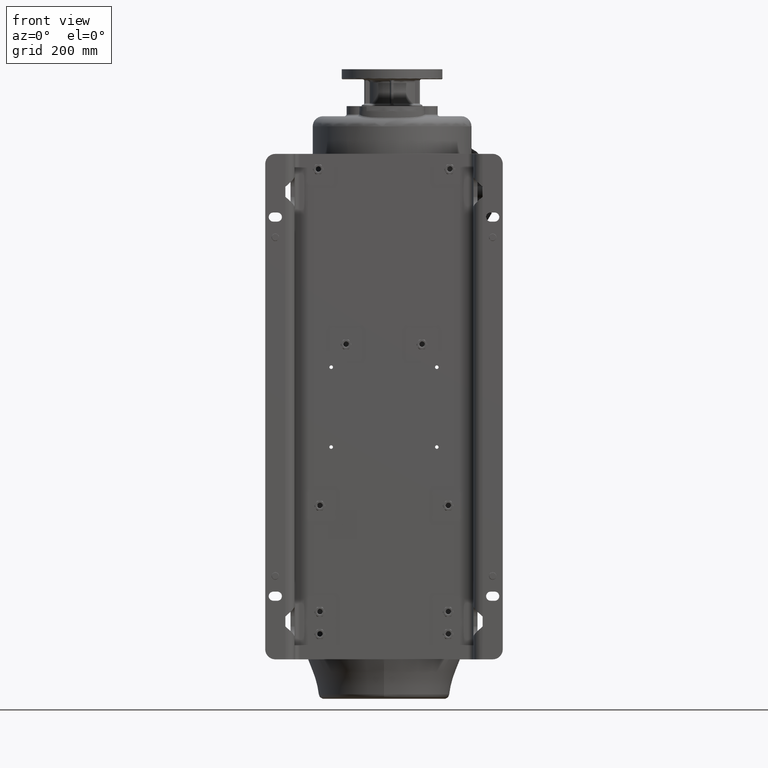
[diagram: clean part render]
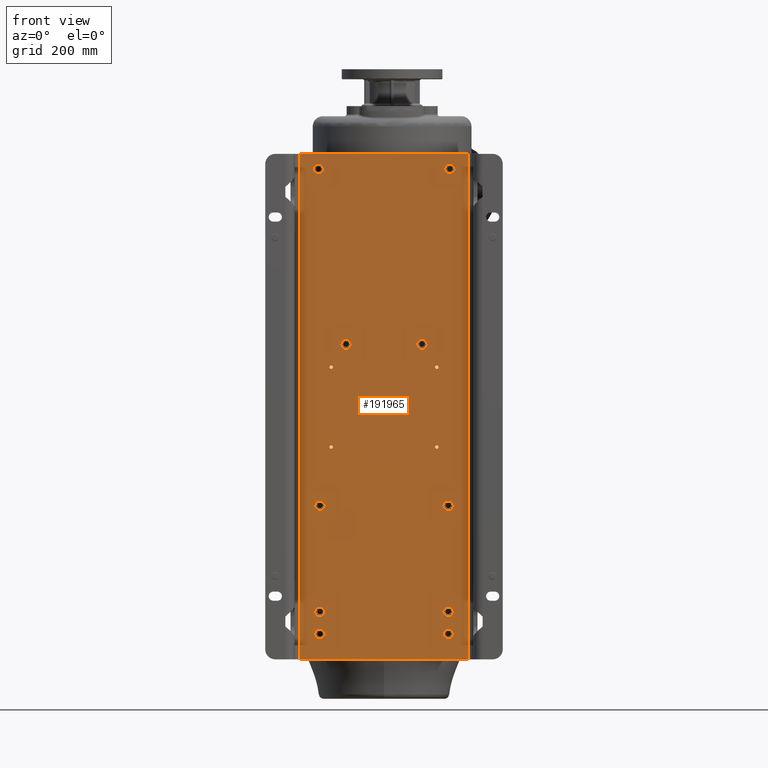
[diagram: same view with one face highlighted and labeled with its STEP entity id]
A machine part, front view. The second image highlights one B-rep face of the part: STEP entity #191965.
In plain terms, the highlighted planar face has unit normal (0, 1, 0).
Its self-contained STEP definition (entity closure, byte-faithful):
#57491=DIRECTION('',(1.E0,0.E0,0.E0));
#57492=VECTOR('',#57491,3.34E2);
#57493=CARTESIAN_POINT('',(-1.67E2,-8.E0,3.05E1));
#57494=LINE('',#57493,#57492);
#57535=DIRECTION('',(1.E0,0.E0,0.E0));
#57536=VECTOR('',#57535,3.34E2);
#57537=CARTESIAN_POINT('',(-1.67E2,-8.E0,-9.695E2));
#57538=LINE('',#57537,#57536);
#57575=DIRECTION('',(0.E0,0.E0,-1.E0));
#57576=VECTOR('',#57575,1.E3);
#57577=CARTESIAN_POINT('',(-1.67E2,-8.E0,3.05E1));
#57578=LINE('',#57577,#57576);
#57579=CARTESIAN_POINT('',(1.045E2,-8.E0,-5.495E2));
#57580=DIRECTION('',(0.E0,1.E0,0.E0));
#57581=DIRECTION('',(1.E0,0.E0,0.E0));
#57582=AXIS2_PLACEMENT_3D('',#57579,#57580,#57581);
#57584=CARTESIAN_POINT('',(1.045E2,-8.E0,-5.495E2));
#57585=DIRECTION('',(0.E0,1.E0,0.E0));
#57586=DIRECTION('',(-1.E0,0.E0,0.E0));
#57587=AXIS2_PLACEMENT_3D('',#57584,#57585,#57586);
#57589=CARTESIAN_POINT('',(-1.045E2,-8.E0,-5.495E2));
#57590=DIRECTION('',(0.E0,1.E0,0.E0));
#57591=DIRECTION('',(1.E0,0.E0,0.E0));
#57592=AXIS2_PLACEMENT_3D('',#57589,#57590,#57591);
#57594=CARTESIAN_POINT('',(-1.045E2,-8.E0,-5.495E2));
#57595=DIRECTION('',(0.E0,1.E0,0.E0));
#57596=DIRECTION('',(-1.E0,0.E0,0.E0));
#57597=AXIS2_PLACEMENT_3D('',#57594,#57595,#57596);
#57599=CARTESIAN_POINT('',(1.045E2,-8.E0,-3.915E2));
#57600=DIRECTION('',(0.E0,1.E0,0.E0));
#57601=DIRECTION('',(1.E0,0.E0,0.E0));
#57602=AXIS2_PLACEMENT_3D('',#57599,#57600,#57601);
#57604=CARTESIAN_POINT('',(1.045E2,-8.E0,-3.915E2));
#57605=DIRECTION('',(0.E0,1.E0,0.E0));
#57606=DIRECTION('',(-1.E0,0.E0,0.E0));
#57607=AXIS2_PLACEMENT_3D('',#57604,#57605,#57606);
#57609=CARTESIAN_POINT('',(-1.045E2,-8.E0,-3.915E2));
#57610=DIRECTION('',(0.E0,1.E0,0.E0));
#57611=DIRECTION('',(1.E0,0.E0,0.E0));
#57612=AXIS2_PLACEMENT_3D('',#57609,#57610,#57611);
#57614=CARTESIAN_POINT('',(-1.045E2,-8.E0,-3.915E2));
#57615=DIRECTION('',(0.E0,1.E0,0.E0));
#57616=DIRECTION('',(-1.E0,0.E0,0.E0));
#57617=AXIS2_PLACEMENT_3D('',#57614,#57615,#57616);
#57619=DIRECTION('',(-5.E-1,0.E0,8.660254037844E-1));
#57620=VECTOR('',#57619,3.483485242654E0);
#57621=CARTESIAN_POINT('',(8.596965511460E1,-8.E0,-3.465E2));
#57622=LINE('',#57621,#57620);
#57623=DIRECTION('',(0.E0,0.E0,-1.E0));
#57624=VECTOR('',#57623,1.252460030010E0);
#57625=CARTESIAN_POINT('',(8.422791249328E1,-8.E0,-3.434832132862E2));
#57626=LINE('',#57625,#57624);
#57627=CARTESIAN_POINT('',(7.5E1,-8.E0,-3.465E2));
#57628=DIRECTION('',(0.E0,-1.E0,0.E0));
#57629=DIRECTION('',(9.822086376966E-1,0.E0,1.877929499056E-1));
#57630=AXIS2_PLACEMENT_3D('',#57627,#57628,#57629);
#57632=DIRECTION('',(8.660254037845E-1,0.E0,5.E-1));
#57633=VECTOR('',#57632,1.252460030010E0);
#57634=CARTESIAN_POINT('',(7.191399548214E1,-8.E0,-3.376262300150E2));
#57635=LINE('',#57634,#57633);
#57636=DIRECTION('',(-1.E0,0.E0,0.E0));
#57637=VECTOR('',#57636,3.483485242654E0);
#57638=CARTESIAN_POINT('',(7.299865768535E1,-8.E0,-3.37E2));
#57639=LINE('',#57638,#57637);
#57640=DIRECTION('',(-5.E-1,0.E0,-8.660254037844E-1));
#57641=VECTOR('',#57640,3.483485242654E0);
#57642=CARTESIAN_POINT('',(6.951517244270E1,-8.E0,-3.37E2));
#57643=LINE('',#57642,#57641);
#57644=DIRECTION('',(8.660254037845E-1,0.E0,5.E-1));
#57645=VECTOR('',#57644,1.252460030010E0);
#57646=CARTESIAN_POINT('',(6.777342982137E1,-8.E0,-3.400167867138E2));
#57647=LINE('',#57646,#57645);
#57648=CARTESIAN_POINT('',(7.5E1,-8.E0,-3.465E2));
#57649=DIRECTION('',(0.E0,-1.E0,0.E0));
#57650=DIRECTION('',(-6.537377841181E-1,0.E0,7.567211571089E-1));
#57651=AXIS2_PLACEMENT_3D('',#57648,#57649,#57650);
#57653=DIRECTION('',(-8.660254037844E-1,0.E0,5.E-1));
#57654=VECTOR('',#57653,1.252460030010E0);
#57655=CARTESIAN_POINT('',(6.885809202458E1,-8.E0,-3.536094433012E2));
#57656=LINE('',#57655,#57654);
#57657=DIRECTION('',(5.E-1,0.E0,-8.660254037844E-1));
#57658=VECTOR('',#57657,3.483485242654E0);
#57659=CARTESIAN_POINT('',(6.777342982137E1,-8.E0,-3.529832132862E2));
#57660=LINE('',#57659,#57658);
#57661=DIRECTION('',(1.E0,0.E0,0.E0));
#57662=VECTOR('',#57661,3.483485242654E0);
#57663=CARTESIAN_POINT('',(6.951517244270E1,-8.E0,-3.56E2));
#57664=LINE('',#57663,#57662);
#57665=DIRECTION('',(-8.660254037844E-1,0.E0,5.E-1));
#57666=VECTOR('',#57665,1.252460030010E0);
#57667=CARTESIAN_POINT('',(7.299865768535E1,-8.E0,-3.56E2));
#57668=LINE('',#57667,#57666);
#57669=CARTESIAN_POINT('',(7.5E1,-8.E0,-3.465E2));
#57670=DIRECTION('',(0.E0,-1.E0,0.E0));
#57671=DIRECTION('',(-3.284708535784E-1,0.E0,-9.445141070145E-1));
#57672=AXIS2_PLACEMENT_3D('',#57669,#57670,#57671);
#57674=DIRECTION('',(0.E0,0.E0,-1.E0));
#57675=VECTOR('',#57674,1.252460030010E0);
#57676=CARTESIAN_POINT('',(8.422791249328E1,-8.E0,-3.482643266838E2));
#57677=LINE('',#57676,#57675);
#57678=DIRECTION('',(5.E-1,0.E0,8.660254037844E-1));
#57679=VECTOR('',#57678,3.483485242654E0);
#57680=CARTESIAN_POINT('',(8.422791249328E1,-8.E0,-3.495167867138E2));
#57681=LINE('',#57680,#57679);
#57682=DIRECTION('',(-5.E-1,0.E0,8.660254037844E-1));
#57683=VECTOR('',#57682,3.483485242654E0);
#57684=CARTESIAN_POINT('',(-6.403034488540E1,-8.E0,-3.465E2));
#57685=LINE('',#57684,#57683);
#57686=DIRECTION('',(0.E0,0.E0,-1.E0));
#57687=VECTOR('',#57686,1.252460030010E0);
#57688=CARTESIAN_POINT('',(-6.577208750672E1,-8.E0,-3.434832132862E2));
#57689=LINE('',#57688,#57687);
#57690=CARTESIAN_POINT('',(-7.5E1,-8.E0,-3.465E2));
#57691=DIRECTION('',(0.E0,-1.E0,0.E0));
#57692=DIRECTION('',(9.822086376966E-1,0.E0,1.877929499056E-1));
#57693=AXIS2_PLACEMENT_3D('',#57690,#57691,#57692);
#57695=DIRECTION('',(8.660254037844E-1,0.E0,5.E-1));
#57696=VECTOR('',#57695,1.252460030010E0);
#57697=CARTESIAN_POINT('',(-7.808600451786E1,-8.E0,-3.376262300150E2));
#57698=LINE('',#57697,#57696);
#57699=DIRECTION('',(-1.E0,0.E0,0.E0));
#57700=VECTOR('',#57699,3.483485242654E0);
#57701=CARTESIAN_POINT('',(-7.700134231465E1,-8.E0,-3.37E2));
#57702=LINE('',#57701,#57700);
#57703=DIRECTION('',(-5.E-1,0.E0,-8.660254037844E-1));
#57704=VECTOR('',#57703,3.483485242654E0);
#57705=CARTESIAN_POINT('',(-8.048482755730E1,-8.E0,-3.37E2));
#57706=LINE('',#57705,#57704);
#57707=DIRECTION('',(8.660254037844E-1,0.E0,5.E-1));
#57708=VECTOR('',#57707,1.252460030010E0);
#57709=CARTESIAN_POINT('',(-8.222657017863E1,-8.E0,-3.400167867138E2));
#57710=LINE('',#57709,#57708);
#57711=CARTESIAN_POINT('',(-7.5E1,-8.E0,-3.465E2));
#57712=DIRECTION('',(0.E0,-1.E0,0.E0));
#57713=DIRECTION('',(-6.537377841181E-1,0.E0,7.567211571089E-1));
#57714=AXIS2_PLACEMENT_3D('',#57711,#57712,#57713);
#57716=DIRECTION('',(-8.660254037844E-1,0.E0,5.E-1));
#57717=VECTOR('',#57716,1.252460030010E0);
#57718=CARTESIAN_POINT('',(-8.114190797542E1,-8.E0,-3.536094433012E2));
#57719=LINE('',#57718,#57717);
#57720=DIRECTION('',(5.E-1,0.E0,-8.660254037844E-1));
#57721=VECTOR('',#57720,3.483485242654E0);
#57722=CARTESIAN_POINT('',(-8.222657017863E1,-8.E0,-3.529832132862E2));
#57723=LINE('',#57722,#57721);
#57724=DIRECTION('',(1.E0,0.E0,0.E0));
#57725=VECTOR('',#57724,3.483485242654E0);
#57726=CARTESIAN_POINT('',(-8.048482755730E1,-8.E0,-3.56E2));
#57727=LINE('',#57726,#57725);
#57728=DIRECTION('',(-8.660254037844E-1,0.E0,5.E-1));
#57729=VECTOR('',#57728,1.252460030010E0);
#57730=CARTESIAN_POINT('',(-7.700134231465E1,-8.E0,-3.56E2));
#57731=LINE('',#57730,#57729);
#57732=CARTESIAN_POINT('',(-7.5E1,-8.E0,-3.465E2));
#57733=DIRECTION('',(0.E0,-1.E0,0.E0));
#57734=DIRECTION('',(-3.284708535784E-1,0.E0,-9.445141070145E-1));
#57735=AXIS2_PLACEMENT_3D('',#57732,#57733,#57734);
#57737=DIRECTION('',(0.E0,0.E0,-1.E0));
#57738=VECTOR('',#57737,1.252460030010E0);
#57739=CARTESIAN_POINT('',(-6.577208750672E1,-8.E0,-3.482643266838E2));
#57740=LINE('',#57739,#57738);
#57741=DIRECTION('',(5.E-1,0.E0,8.660254037844E-1));
#57742=VECTOR('',#57741,3.483485242654E0);
#57743=CARTESIAN_POINT('',(-6.577208750672E1,-8.E0,-3.495167867138E2));
#57744=LINE('',#57743,#57742);
#57745=DIRECTION('',(-5.E-1,0.E0,8.660254037844E-1));
#57746=VECTOR('',#57745,3.483485242654E0);
#57747=CARTESIAN_POINT('',(1.409696551146E2,-8.E0,0.E0));
#57748=LINE('',#57747,#57746);
#57749=DIRECTION('',(0.E0,0.E0,-1.E0));
#57750=VECTOR('',#57749,1.252460030010E0);
#57751=CARTESIAN_POINT('',(1.392279124933E2,-8.E0,3.016786713847E0));
#57752=LINE('',#57751,#57750);
#57753=CARTESIAN_POINT('',(1.3E2,-8.E0,0.E0));
#57754=DIRECTION('',(0.E0,-1.E0,0.E0));
#57755=DIRECTION('',(9.822086376966E-1,0.E0,1.877929499056E-1));
#57756=AXIS2_PLACEMENT_3D('',#57753,#57754,#57755);
#57758=DIRECTION('',(8.660254037844E-1,0.E0,5.E-1));
#57759=VECTOR('',#57758,1.252460030010E0);
#57760=CARTESIAN_POINT('',(1.269139954821E2,-8.E0,8.873769984995E0));
#57761=LINE('',#57760,#57759);
#57762=DIRECTION('',(-1.E0,0.E0,0.E0));
#57763=VECTOR('',#57762,3.483485242654E0);
#57764=CARTESIAN_POINT('',(1.279986576854E2,-8.E0,9.5E0));
#57765=LINE('',#57764,#57763);
#57766=DIRECTION('',(-5.E-1,0.E0,-8.660254037844E-1));
#57767=VECTOR('',#57766,3.483485242654E0);
#57768=CARTESIAN_POINT('',(1.245151724427E2,-8.E0,9.5E0));
#57769=LINE('',#57768,#57767);
#57770=DIRECTION('',(8.660254037844E-1,0.E0,5.E-1));
#57771=VECTOR('',#57770,1.252460030010E0);
#57772=CARTESIAN_POINT('',(1.227734298214E2,-8.E0,6.483213286153E0));
#57773=LINE('',#57772,#57771);
#57774=CARTESIAN_POINT('',(1.3E2,-8.E0,0.E0));
#57775=DIRECTION('',(0.E0,-1.E0,0.E0));
#57776=DIRECTION('',(-6.537377841182E-1,0.E0,7.567211571089E-1));
#57777=AXIS2_PLACEMENT_3D('',#57774,#57775,#57776);
#57779=DIRECTION('',(-8.660254037844E-1,0.E0,5.E-1));
#57780=VECTOR('',#57779,1.252460030010E0);
#57781=CARTESIAN_POINT('',(1.238580920246E2,-8.E0,-7.109443301158E0));
#57782=LINE('',#57781,#57780);
#57783=DIRECTION('',(5.E-1,0.E0,-8.660254037844E-1));
#57784=VECTOR('',#57783,3.483485242654E0);
#57785=CARTESIAN_POINT('',(1.227734298214E2,-8.E0,-6.483213286153E0));
#57786=LINE('',#57785,#57784);
#57787=DIRECTION('',(1.E0,0.E0,0.E0));
#57788=VECTOR('',#57787,3.483485242654E0);
#57789=CARTESIAN_POINT('',(1.245151724427E2,-8.E0,-9.5E0));
#57790=LINE('',#57789,#57788);
#57791=DIRECTION('',(-8.660254037844E-1,0.E0,5.E-1));
#57792=VECTOR('',#57791,1.252460030010E0);
#57793=CARTESIAN_POINT('',(1.279986576854E2,-8.E0,-9.5E0));
#57794=LINE('',#57793,#57792);
#57795=CARTESIAN_POINT('',(1.3E2,-8.E0,0.E0));
#57796=DIRECTION('',(0.E0,-1.E0,0.E0));
#57797=DIRECTION('',(-3.284708535784E-1,0.E0,-9.445141070145E-1));
#57798=AXIS2_PLACEMENT_3D('',#57795,#57796,#57797);
#57800=DIRECTION('',(0.E0,0.E0,-1.E0));
#57801=VECTOR('',#57800,1.252460030010E0);
#57802=CARTESIAN_POINT('',(1.392279124933E2,-8.E0,-1.764326683837E0));
#57803=LINE('',#57802,#57801);
#57804=DIRECTION('',(5.E-1,0.E0,8.660254037844E-1));
#57805=VECTOR('',#57804,3.483485242654E0);
#57806=CARTESIAN_POINT('',(1.392279124933E2,-8.E0,-3.016786713847E0));
#57807=LINE('',#57806,#57805);
#57808=DIRECTION('',(-5.E-1,0.E0,8.660254037844E-1));
#57809=VECTOR('',#57808,3.483485242654E0);
#57810=CARTESIAN_POINT('',(-1.190303448854E2,-8.E0,0.E0));
#57811=LINE('',#57810,#57809);
#57812=DIRECTION('',(0.E0,0.E0,-1.E0));
#57813=VECTOR('',#57812,1.252460030010E0);
#57814=CARTESIAN_POINT('',(-1.207720875067E2,-8.E0,3.016786713847E0));
#57815=LINE('',#57814,#57813);
#57816=CARTESIAN_POINT('',(-1.3E2,-8.E0,0.E0));
#57817=DIRECTION('',(0.E0,-1.E0,0.E0));
#57818=DIRECTION('',(9.822086376966E-1,0.E0,1.877929499056E-1));
#57819=AXIS2_PLACEMENT_3D('',#57816,#57817,#57818);
#57821=DIRECTION('',(8.660254037844E-1,0.E0,5.E-1));
#57822=VECTOR('',#57821,1.252460030010E0);
#57823=CARTESIAN_POINT('',(-1.330860045179E2,-8.E0,8.873769984995E0));
#57824=LINE('',#57823,#57822);
#57825=DIRECTION('',(-1.E0,0.E0,0.E0));
#57826=VECTOR('',#57825,3.483485242654E0);
#57827=CARTESIAN_POINT('',(-1.320013423146E2,-8.E0,9.5E0));
#57828=LINE('',#57827,#57826);
#57829=DIRECTION('',(-5.E-1,0.E0,-8.660254037844E-1));
#57830=VECTOR('',#57829,3.483485242654E0);
#57831=CARTESIAN_POINT('',(-1.354848275573E2,-8.E0,9.5E0));
#57832=LINE('',#57831,#57830);
#57833=DIRECTION('',(8.660254037844E-1,0.E0,5.E-1));
#57834=VECTOR('',#57833,1.252460030010E0);
#57835=CARTESIAN_POINT('',(-1.372265701786E2,-8.E0,6.483213286153E0));
#57836=LINE('',#57835,#57834);
#57837=CARTESIAN_POINT('',(-1.3E2,-8.E0,0.E0));
#57838=DIRECTION('',(0.E0,-1.E0,0.E0));
#57839=DIRECTION('',(-6.537377841182E-1,0.E0,7.567211571089E-1));
#57840=AXIS2_PLACEMENT_3D('',#57837,#57838,#57839);
#57842=DIRECTION('',(-8.660254037844E-1,0.E0,5.E-1));
#57843=VECTOR('',#57842,1.252460030010E0);
#57844=CARTESIAN_POINT('',(-1.361419079754E2,-8.E0,-7.109443301158E0));
#57845=LINE('',#57844,#57843);
#57846=DIRECTION('',(5.E-1,0.E0,-8.660254037844E-1));
#57847=VECTOR('',#57846,3.483485242654E0);
#57848=CARTESIAN_POINT('',(-1.372265701786E2,-8.E0,-6.483213286153E0));
#57849=LINE('',#57848,#57847);
#57850=DIRECTION('',(1.E0,0.E0,0.E0));
#57851=VECTOR('',#57850,3.483485242654E0);
#57852=CARTESIAN_POINT('',(-1.354848275573E2,-8.E0,-9.5E0));
#57853=LINE('',#57852,#57851);
#57854=DIRECTION('',(-8.660254037844E-1,0.E0,5.E-1));
#57855=VECTOR('',#57854,1.252460030010E0);
#57856=CARTESIAN_POINT('',(-1.320013423146E2,-8.E0,-9.5E0));
#57857=LINE('',#57856,#57855);
#57858=CARTESIAN_POINT('',(-1.3E2,-8.E0,0.E0));
#57859=DIRECTION('',(0.E0,-1.E0,0.E0));
#57860=DIRECTION('',(-3.284708535784E-1,0.E0,-9.445141070145E-1));
#57861=AXIS2_PLACEMENT_3D('',#57858,#57859,#57860);
#57863=DIRECTION('',(0.E0,0.E0,-1.E0));
#57864=VECTOR('',#57863,1.252460030010E0);
#57865=CARTESIAN_POINT('',(-1.207720875067E2,-8.E0,-1.764326683837E0));
#57866=LINE('',#57865,#57864);
#57867=DIRECTION('',(5.E-1,0.E0,8.660254037844E-1));
#57868=VECTOR('',#57867,3.483485242654E0);
#57869=CARTESIAN_POINT('',(-1.207720875067E2,-8.E0,-3.016786713847E0));
#57870=LINE('',#57869,#57868);
#57871=DIRECTION('',(-5.E-1,0.E0,8.660254037845E-1));
#57872=VECTOR('',#57871,3.483485242654E0);
#57873=CARTESIAN_POINT('',(1.379696551146E2,-8.E0,-6.655E2));
#57874=LINE('',#57873,#57872);
#57875=DIRECTION('',(0.E0,0.E0,-1.E0));
#57876=VECTOR('',#57875,1.252460030010E0);
#57877=CARTESIAN_POINT('',(1.362279124933E2,-8.E0,-6.624832132862E2));
#57878=LINE('',#57877,#57876);
#57879=CARTESIAN_POINT('',(1.27E2,-8.E0,-6.655E2));
#57880=DIRECTION('',(0.E0,-1.E0,0.E0));
#57881=DIRECTION('',(9.822086376966E-1,0.E0,1.877929499056E-1));
#57882=AXIS2_PLACEMENT_3D('',#57879,#57880,#57881);
#57884=DIRECTION('',(8.660254037845E-1,-3.545735586041E-14,4.999999999999E-1));
#57885=VECTOR('',#57884,1.252460030010E0);
#57886=CARTESIAN_POINT('',(1.239139954821E2,-8.E0,-6.566262300150E2));
#57887=LINE('',#57886,#57885);
#57888=DIRECTION('',(-1.E0,1.325835323167E-14,0.E0));
#57889=VECTOR('',#57888,3.483485242654E0);
#57890=CARTESIAN_POINT('',(1.249986576854E2,-8.E0,-6.56E2));
#57891=LINE('',#57890,#57889);
#57892=DIRECTION('',(-5.E-1,0.E0,-8.660254037844E-1));
#57893=VECTOR('',#57892,3.483485242654E0);
#57894=CARTESIAN_POINT('',(1.215151724427E2,-8.E0,-6.56E2));
#57895=LINE('',#57894,#57893);
#57896=DIRECTION('',(8.660254037844E-1,0.E0,5.000000000001E-1));
#57897=VECTOR('',#57896,1.252460030010E0);
#57898=CARTESIAN_POINT('',(1.197734298214E2,-8.E0,-6.590167867138E2));
#57899=LINE('',#57898,#57897);
#57900=CARTESIAN_POINT('',(1.27E2,-8.E0,-6.655E2));
#57901=DIRECTION('',(0.E0,-1.E0,0.E0));
#57902=DIRECTION('',(-6.537377841182E-1,0.E0,7.567211571089E-1));
#57903=AXIS2_PLACEMENT_3D('',#57900,#57901,#57902);
#57905=DIRECTION('',(-8.660254037844E-1,-1.134635387533E-14,5.000000000001E-1));
#57906=VECTOR('',#57905,1.252460030010E0);
#57907=CARTESIAN_POINT('',(1.208580920246E2,-8.E0,-6.726094433012E2));
#57908=LINE('',#57907,#57906);
#57909=DIRECTION('',(5.E-1,0.E0,-8.660254037844E-1));
#57910=VECTOR('',#57909,3.483485242654E0);
#57911=CARTESIAN_POINT('',(1.197734298214E2,-8.E0,-6.719832132862E2));
#57912=LINE('',#57911,#57910);
#57913=DIRECTION('',(1.E0,0.E0,0.E0));
#57914=VECTOR('',#57913,3.483485242654E0);
#57915=CARTESIAN_POINT('',(1.215151724427E2,-8.E0,-6.75E2));
#57916=LINE('',#57915,#57914);
#57917=DIRECTION('',(-8.660254037845E-1,1.134635387533E-14,4.999999999999E-1));
#57918=VECTOR('',#57917,1.252460030010E0);
#57919=CARTESIAN_POINT('',(1.249986576854E2,-8.E0,-6.75E2));
#57920=LINE('',#57919,#57918);
#57921=CARTESIAN_POINT('',(1.27E2,-8.E0,-6.655E2));
#57922=DIRECTION('',(0.E0,-1.E0,0.E0));
#57923=DIRECTION('',(-3.284708535784E-1,0.E0,-9.445141070145E-1));
#57924=AXIS2_PLACEMENT_3D('',#57921,#57922,#57923);
#57926=DIRECTION('',(0.E0,0.E0,-1.E0));
#57927=VECTOR('',#57926,1.252460030010E0);
#57928=CARTESIAN_POINT('',(1.362279124933E2,-8.E0,-6.672643266838E2));
#57929=LINE('',#57928,#57927);
#57930=DIRECTION('',(5.E-1,0.E0,8.660254037844E-1));
#57931=VECTOR('',#57930,3.483485242654E0);
#57932=CARTESIAN_POINT('',(1.362279124933E2,-8.E0,-6.685167867138E2));
#57933=LINE('',#57932,#57931);
#57934=DIRECTION('',(-5.E-1,0.E0,8.660254037845E-1));
#57935=VECTOR('',#57934,3.483485242654E0);
#57936=CARTESIAN_POINT('',(-1.160303448854E2,-8.E0,-6.655E2));
#57937=LINE('',#57936,#57935);
#57938=DIRECTION('',(2.269270775066E-14,0.E0,-1.E0));
#57939=VECTOR('',#57938,1.252460030010E0);
#57940=CARTESIAN_POINT('',(-1.177720875067E2,-8.E0,-6.624832132862E2));
#57941=LINE('',#57940,#57939);
#57942=CARTESIAN_POINT('',(-1.27E2,-8.E0,-6.655E2));
#57943=DIRECTION('',(0.E0,-1.E0,0.E0));
#57944=DIRECTION('',(9.822086376966E-1,0.E0,1.877929499056E-1));
#57945=AXIS2_PLACEMENT_3D('',#57942,#57943,#57944);
#57947=DIRECTION('',(8.660254037845E-1,-2.411100198508E-14,4.999999999999E-1));
#57948=VECTOR('',#57947,1.252460030010E0);
#57949=CARTESIAN_POINT('',(-1.300860045179E2,-8.E0,-6.566262300150E2));
#57950=LINE('',#57949,#57948);
#57951=DIRECTION('',(-1.E0,0.E0,0.E0));
#57952=VECTOR('',#57951,3.483485242654E0);
#57953=CARTESIAN_POINT('',(-1.290013423146E2,-8.E0,-6.56E2));
#57954=LINE('',#57953,#57952);
#57955=DIRECTION('',(-5.E-1,0.E0,-8.660254037844E-1));
#57956=VECTOR('',#57955,3.483485242654E0);
#57957=CARTESIAN_POINT('',(-1.324848275573E2,-8.E0,-6.56E2));
#57958=LINE('',#57957,#57956);
#57959=DIRECTION('',(8.660254037845E-1,0.E0,4.999999999999E-1));
#57960=VECTOR('',#57959,1.252460030010E0);
#57961=CARTESIAN_POINT('',(-1.342265701786E2,-8.E0,-6.590167867138E2));
#57962=LINE('',#57961,#57960);
#57963=CARTESIAN_POINT('',(-1.27E2,-8.E0,-6.655E2));
#57964=DIRECTION('',(0.E0,-1.E0,0.E0));
#57965=DIRECTION('',(-6.537377841182E-1,0.E0,7.567211571089E-1));
#57966=AXIS2_PLACEMENT_3D('',#57963,#57964,#57965);
#57968=DIRECTION('',(-8.660254037844E-1,-1.134635387533E-14,5.000000000001E-1));
#57969=VECTOR('',#57968,1.252460030010E0);
#57970=CARTESIAN_POINT('',(-1.331419079754E2,-8.E0,-6.726094433012E2));
#57971=LINE('',#57970,#57969);
#57972=DIRECTION('',(5.E-1,0.E0,-8.660254037844E-1));
#57973=VECTOR('',#57972,3.483485242654E0);
#57974=CARTESIAN_POINT('',(-1.342265701786E2,-8.E0,-6.719832132862E2));
#57975=LINE('',#57974,#57973);
#57976=DIRECTION('',(1.E0,0.E0,0.E0));
#57977=VECTOR('',#57976,3.483485242654E0);
#57978=CARTESIAN_POINT('',(-1.324848275573E2,-8.E0,-6.75E2));
#57979=LINE('',#57978,#57977);
#57980=DIRECTION('',(-8.660254037844E-1,0.E0,5.E-1));
#57981=VECTOR('',#57980,1.252460030010E0);
#57982=CARTESIAN_POINT('',(-1.290013423146E2,-8.E0,-6.75E2));
#57983=LINE('',#57982,#57981);
#57984=CARTESIAN_POINT('',(-1.27E2,-8.E0,-6.655E2));
#57985=DIRECTION('',(0.E0,-1.E0,0.E0));
#57986=DIRECTION('',(-3.284708535784E-1,0.E0,-9.445141070145E-1));
#57987=AXIS2_PLACEMENT_3D('',#57984,#57985,#57986);
#57989=DIRECTION('',(0.E0,0.E0,-1.E0));
#57990=VECTOR('',#57989,1.252460030010E0);
#57991=CARTESIAN_POINT('',(-1.177720875067E2,-8.E0,-6.672643266838E2));
#57992=LINE('',#57991,#57990);
#57993=DIRECTION('',(5.E-1,0.E0,8.660254037844E-1));
#57994=VECTOR('',#57993,3.483485242654E0);
#57995=CARTESIAN_POINT('',(-1.177720875067E2,-8.E0,-6.685167867138E2));
#57996=LINE('',#57995,#57994);
#57997=DIRECTION('',(-5.E-1,0.E0,8.660254037844E-1));
#57998=VECTOR('',#57997,3.483485242654E0);
#57999=CARTESIAN_POINT('',(1.379696551146E2,-8.E0,-8.755E2));
#58000=LINE('',#57999,#57998);
#58001=DIRECTION('',(0.E0,1.134635387533E-14,-1.E0));
#58002=VECTOR('',#58001,1.252460030010E0);
#58003=CARTESIAN_POINT('',(1.362279124933E2,-8.E0,-8.724832132862E2));
#58004=LINE('',#58003,#58002);
#58005=CARTESIAN_POINT('',(1.27E2,-8.E0,-8.755E2));
#58006=DIRECTION('',(0.E0,-1.E0,0.E0));
#58007=DIRECTION('',(9.822086376966E-1,0.E0,1.877929499056E-1));
#58008=AXIS2_PLACEMENT_3D('',#58005,#58006,#58007);
#58010=DIRECTION('',(8.660254037845E-1,0.E0,4.999999999999E-1));
#58011=VECTOR('',#58010,1.252460030010E0);
#58012=CARTESIAN_POINT('',(1.239139954821E2,-8.E0,-8.666262300150E2));
#58013=LINE('',#58012,#58011);
#58014=DIRECTION('',(-1.E0,0.E0,0.E0));
#58015=VECTOR('',#58014,3.483485242654E0);
#58016=CARTESIAN_POINT('',(1.249986576854E2,-8.E0,-8.66E2));
#58017=LINE('',#58016,#58015);
#58018=DIRECTION('',(-5.E-1,0.E0,-8.660254037844E-1));
#58019=VECTOR('',#58018,3.483485242654E0);
#58020=CARTESIAN_POINT('',(1.215151724427E2,-8.E0,-8.66E2));
#58021=LINE('',#58020,#58019);
#58022=DIRECTION('',(8.660254037843E-1,0.E0,5.000000000002E-1));
#58023=VECTOR('',#58022,1.252460030010E0);
#58024=CARTESIAN_POINT('',(1.197734298214E2,-8.E0,-8.690167867138E2));
#58025=LINE('',#58024,#58023);
#58026=CARTESIAN_POINT('',(1.27E2,-8.E0,-8.755E2));
#58027=DIRECTION('',(0.E0,-1.E0,0.E0));
#58028=DIRECTION('',(-6.537377841182E-1,0.E0,7.567211571089E-1));
#58029=AXIS2_PLACEMENT_3D('',#58026,#58027,#58028);
#58031=DIRECTION('',(-8.660254037844E-1,0.E0,5.000000000001E-1));
#58032=VECTOR('',#58031,1.252460030010E0);
#58033=CARTESIAN_POINT('',(1.208580920246E2,-8.E0,-8.826094433012E2));
#58034=LINE('',#58033,#58032);
#58035=DIRECTION('',(5.E-1,0.E0,-8.660254037844E-1));
#58036=VECTOR('',#58035,3.483485242654E0);
#58037=CARTESIAN_POINT('',(1.197734298214E2,-8.E0,-8.819832132862E2));
#58038=LINE('',#58037,#58036);
#58039=DIRECTION('',(1.E0,0.E0,0.E0));
#58040=VECTOR('',#58039,3.483485242654E0);
#58041=CARTESIAN_POINT('',(1.215151724427E2,-8.E0,-8.85E2));
#58042=LINE('',#58041,#58040);
#58043=DIRECTION('',(-8.660254037845E-1,0.E0,4.999999999999E-1));
#58044=VECTOR('',#58043,1.252460030010E0);
#58045=CARTESIAN_POINT('',(1.249986576854E2,-8.E0,-8.85E2));
#58046=LINE('',#58045,#58044);
#58047=CARTESIAN_POINT('',(1.27E2,-8.E0,-8.755E2));
#58048=DIRECTION('',(0.E0,-1.E0,0.E0));
#58049=DIRECTION('',(-3.284708535784E-1,0.E0,-9.445141070145E-1));
#58050=AXIS2_PLACEMENT_3D('',#58047,#58048,#58049);
#58052=DIRECTION('',(2.269270775067E-14,0.E0,-1.E0));
#58053=VECTOR('',#58052,1.252460030010E0);
#58054=CARTESIAN_POINT('',(1.362279124933E2,-8.E0,-8.772643266838E2));
#58055=LINE('',#58054,#58053);
#58056=DIRECTION('',(5.E-1,0.E0,8.660254037844E-1));
#58057=VECTOR('',#58056,3.483485242654E0);
#58058=CARTESIAN_POINT('',(1.362279124933E2,-8.E0,-8.785167867138E2));
#58059=LINE('',#58058,#58057);
#58060=DIRECTION('',(-5.E-1,0.E0,8.660254037845E-1));
#58061=VECTOR('',#58060,3.483485242654E0);
#58062=CARTESIAN_POINT('',(-1.160303448854E2,-8.E0,-8.755E2));
#58063=LINE('',#58062,#58061);
#58064=DIRECTION('',(2.269270775066E-14,1.560123657858E-14,-1.E0));
#58065=VECTOR('',#58064,1.252460030010E0);
#58066=CARTESIAN_POINT('',(-1.177720875067E2,-8.E0,-8.724832132862E2));
#58067=LINE('',#58066,#58065);
#58068=CARTESIAN_POINT('',(-1.27E2,-8.E0,-8.755E2));
#58069=DIRECTION('',(0.E0,-1.E0,0.E0));
#58070=DIRECTION('',(9.822086376966E-1,0.E0,1.877929499056E-1));
#58071=AXIS2_PLACEMENT_3D('',#58068,#58069,#58070);
#58073=DIRECTION('',(8.660254037844E-1,0.E0,5.E-1));
#58074=VECTOR('',#58073,1.252460030010E0);
#58075=CARTESIAN_POINT('',(-1.300860045179E2,-8.E0,-8.666262300150E2));
#58076=LINE('',#58075,#58074);
#58077=DIRECTION('',(-1.E0,0.E0,0.E0));
#58078=VECTOR('',#58077,3.483485242654E0);
#58079=CARTESIAN_POINT('',(-1.290013423146E2,-8.E0,-8.66E2));
#58080=LINE('',#58079,#58078);
#58081=DIRECTION('',(-5.E-1,0.E0,-8.660254037844E-1));
#58082=VECTOR('',#58081,3.483485242654E0);
#58083=CARTESIAN_POINT('',(-1.324848275573E2,-8.E0,-8.66E2));
#58084=LINE('',#58083,#58082);
#58085=DIRECTION('',(8.660254037844E-1,0.E0,5.000000000001E-1));
#58086=VECTOR('',#58085,1.252460030010E0);
#58087=CARTESIAN_POINT('',(-1.342265701786E2,-8.E0,-8.690167867138E2));
#58088=LINE('',#58087,#58086);
#58089=CARTESIAN_POINT('',(-1.27E2,-8.E0,-8.755E2));
#58090=DIRECTION('',(0.E0,-1.E0,0.E0));
#58091=DIRECTION('',(-6.537377841182E-1,0.E0,7.567211571089E-1));
#58092=AXIS2_PLACEMENT_3D('',#58089,#58090,#58091);
#58094=DIRECTION('',(-8.660254037844E-1,0.E0,5.000000000001E-1));
#58095=VECTOR('',#58094,1.252460030010E0);
#58096=CARTESIAN_POINT('',(-1.331419079754E2,-8.E0,-8.826094433012E2));
#58097=LINE('',#58096,#58095);
#58098=DIRECTION('',(5.E-1,0.E0,-8.660254037844E-1));
#58099=VECTOR('',#58098,3.483485242654E0);
#58100=CARTESIAN_POINT('',(-1.342265701786E2,-8.E0,-8.819832132862E2));
#58101=LINE('',#58100,#58099);
#58102=DIRECTION('',(1.E0,0.E0,0.E0));
#58103=VECTOR('',#58102,3.483485242654E0);
#58104=CARTESIAN_POINT('',(-1.324848275573E2,-8.E0,-8.85E2));
#58105=LINE('',#58104,#58103);
#58106=DIRECTION('',(-8.660254037844E-1,-1.489208946137E-14,5.E-1));
#58107=VECTOR('',#58106,1.252460030010E0);
#58108=CARTESIAN_POINT('',(-1.290013423146E2,-8.E0,-8.85E2));
#58109=LINE('',#58108,#58107);
#58110=CARTESIAN_POINT('',(-1.27E2,-8.E0,-8.755E2));
#58111=DIRECTION('',(0.E0,-1.E0,0.E0));
#58112=DIRECTION('',(-3.284708535784E-1,0.E0,-9.445141070145E-1));
#58113=AXIS2_PLACEMENT_3D('',#58110,#58111,#58112);
#58115=DIRECTION('',(0.E0,0.E0,-1.E0));
#58116=VECTOR('',#58115,1.252460030010E0);
#58117=CARTESIAN_POINT('',(-1.177720875067E2,-8.E0,-8.772643266838E2));
#58118=LINE('',#58117,#58116);
#58119=DIRECTION('',(5.E-1,0.E0,8.660254037844E-1));
#58120=VECTOR('',#58119,3.483485242654E0);
#58121=CARTESIAN_POINT('',(-1.177720875067E2,-8.E0,-8.785167867138E2));
#58122=LINE('',#58121,#58120);
#58123=DIRECTION('',(-5.E-1,0.E0,8.660254037844E-1));
#58124=VECTOR('',#58123,3.483485242654E0);
#58125=CARTESIAN_POINT('',(-1.160303448854E2,-8.E0,-9.195E2));
#58126=LINE('',#58125,#58124);
#58127=DIRECTION('',(0.E0,0.E0,-1.E0));
#58128=VECTOR('',#58127,1.252460030010E0);
#58129=CARTESIAN_POINT('',(-1.177720875067E2,-8.E0,-9.164832132862E2));
#58130=LINE('',#58129,#58128);
#58131=CARTESIAN_POINT('',(-1.27E2,-8.E0,-9.195E2));
#58132=DIRECTION('',(0.E0,-1.E0,0.E0));
#58133=DIRECTION('',(9.822086376966E-1,0.E0,1.877929499056E-1));
#58134=AXIS2_PLACEMENT_3D('',#58131,#58132,#58133);
#58136=DIRECTION('',(8.660254037844E-1,-1.276464810975E-14,5.E-1));
#58137=VECTOR('',#58136,1.252460030010E0);
#58138=CARTESIAN_POINT('',(-1.300860045179E2,-8.E0,-9.106262300150E2));
#58139=LINE('',#58138,#58137);
#58140=DIRECTION('',(-1.E0,0.E0,0.E0));
#58141=VECTOR('',#58140,3.483485242654E0);
#58142=CARTESIAN_POINT('',(-1.290013423146E2,-8.E0,-9.1E2));
#58143=LINE('',#58142,#58141);
#58144=DIRECTION('',(-5.E-1,0.E0,-8.660254037844E-1));
#58145=VECTOR('',#58144,3.483485242654E0);
#58146=CARTESIAN_POINT('',(-1.324848275573E2,-8.E0,-9.1E2));
#58147=LINE('',#58146,#58145);
#58148=DIRECTION('',(8.660254037844E-1,0.E0,5.000000000001E-1));
#58149=VECTOR('',#58148,1.252460030010E0);
#58150=CARTESIAN_POINT('',(-1.342265701786E2,-8.E0,-9.130167867138E2));
#58151=LINE('',#58150,#58149);
#58152=CARTESIAN_POINT('',(-1.27E2,-8.E0,-9.195E2));
#58153=DIRECTION('',(0.E0,-1.E0,0.E0));
#58154=DIRECTION('',(-6.537377841182E-1,0.E0,7.567211571089E-1));
#58155=AXIS2_PLACEMENT_3D('',#58152,#58153,#58154);
#58157=DIRECTION('',(-8.660254037844E-1,-1.134635387533E-14,5.E-1));
#58158=VECTOR('',#58157,1.252460030010E0);
#58159=CARTESIAN_POINT('',(-1.331419079754E2,-8.E0,-9.266094433012E2));
#58160=LINE('',#58159,#58158);
#58161=DIRECTION('',(5.E-1,0.E0,-8.660254037844E-1));
#58162=VECTOR('',#58161,3.483485242654E0);
#58163=CARTESIAN_POINT('',(-1.342265701786E2,-8.E0,-9.259832132862E2));
#58164=LINE('',#58163,#58162);
#58165=DIRECTION('',(1.E0,0.E0,0.E0));
#58166=VECTOR('',#58165,3.483485242654E0);
#58167=CARTESIAN_POINT('',(-1.324848275573E2,-8.E0,-9.29E2));
#58168=LINE('',#58167,#58166);
#58169=DIRECTION('',(-8.660254037845E-1,0.E0,5.E-1));
#58170=VECTOR('',#58169,1.252460030010E0);
#58171=CARTESIAN_POINT('',(-1.290013423146E2,-8.E0,-9.29E2));
#58172=LINE('',#58171,#58170);
#58173=CARTESIAN_POINT('',(-1.27E2,-8.E0,-9.195E2));
#58174=DIRECTION('',(0.E0,-1.E0,0.E0));
#58175=DIRECTION('',(-3.284708535784E-1,0.E0,-9.445141070145E-1));
#58176=AXIS2_PLACEMENT_3D('',#58173,#58174,#58175);
#58178=DIRECTION('',(0.E0,0.E0,-1.E0));
#58179=VECTOR('',#58178,1.252460030010E0);
#58180=CARTESIAN_POINT('',(-1.177720875067E2,-8.E0,-9.212643266838E2));
#58181=LINE('',#58180,#58179);
#58182=DIRECTION('',(5.E-1,0.E0,8.660254037844E-1));
#58183=VECTOR('',#58182,3.483485242654E0);
#58184=CARTESIAN_POINT('',(-1.177720875067E2,-8.E0,-9.225167867138E2));
#58185=LINE('',#58184,#58183);
#58186=DIRECTION('',(-5.E-1,0.E0,8.660254037844E-1));
#58187=VECTOR('',#58186,3.483485242654E0);
#58188=CARTESIAN_POINT('',(1.379696551146E2,-8.E0,-9.195E2));
#58189=LINE('',#58188,#58187);
#58190=DIRECTION('',(0.E0,0.E0,-1.E0));
#58191=VECTOR('',#58190,1.252460030010E0);
#58192=CARTESIAN_POINT('',(1.362279124933E2,-8.E0,-9.164832132862E2));
#58193=LINE('',#58192,#58191);
#58194=CARTESIAN_POINT('',(1.27E2,-8.E0,-9.195E2));
#58195=DIRECTION('',(0.E0,-1.E0,0.E0));
#58196=DIRECTION('',(9.822086376966E-1,0.E0,1.877929499056E-1));
#58197=AXIS2_PLACEMENT_3D('',#58194,#58195,#58196);
#58199=DIRECTION('',(8.660254037845E-1,0.E0,5.E-1));
#58200=VECTOR('',#58199,1.252460030010E0);
#58201=CARTESIAN_POINT('',(1.239139954821E2,-8.E0,-9.106262300150E2));
#58202=LINE('',#58201,#58200);
#58203=DIRECTION('',(-1.E0,0.E0,0.E0));
#58204=VECTOR('',#58203,3.483485242654E0);
#58205=CARTESIAN_POINT('',(1.249986576854E2,-8.E0,-9.1E2));
#58206=LINE('',#58205,#58204);
#58207=DIRECTION('',(-5.E-1,0.E0,-8.660254037844E-1));
#58208=VECTOR('',#58207,3.483485242654E0);
#58209=CARTESIAN_POINT('',(1.215151724427E2,-8.E0,-9.1E2));
#58210=LINE('',#58209,#58208);
#58211=DIRECTION('',(8.660254037844E-1,1.276464810975E-14,5.000000000001E-1));
#58212=VECTOR('',#58211,1.252460030010E0);
#58213=CARTESIAN_POINT('',(1.197734298214E2,-8.E0,-9.130167867138E2));
#58214=LINE('',#58213,#58212);
#58215=CARTESIAN_POINT('',(1.27E2,-8.E0,-9.195E2));
#58216=DIRECTION('',(0.E0,-1.E0,0.E0));
#58217=DIRECTION('',(-6.537377841182E-1,0.E0,7.567211571089E-1));
#58218=AXIS2_PLACEMENT_3D('',#58215,#58216,#58217);
#58220=DIRECTION('',(-8.660254037844E-1,-2.411100198508E-14,5.000000000001E-1));
#58221=VECTOR('',#58220,1.252460030010E0);
#58222=CARTESIAN_POINT('',(1.208580920246E2,-8.E0,-9.266094433012E2));
#58223=LINE('',#58222,#58221);
#58224=DIRECTION('',(5.E-1,0.E0,-8.660254037844E-1));
#58225=VECTOR('',#58224,3.483485242654E0);
#58226=CARTESIAN_POINT('',(1.197734298214E2,-8.E0,-9.259832132862E2));
#58227=LINE('',#58226,#58225);
#58228=DIRECTION('',(1.E0,0.E0,0.E0));
#58229=VECTOR('',#58228,3.483485242654E0);
#58230=CARTESIAN_POINT('',(1.215151724427E2,-8.E0,-9.29E2));
#58231=LINE('',#58230,#58229);
#58232=DIRECTION('',(-8.660254037844E-1,0.E0,5.E-1));
#58233=VECTOR('',#58232,1.252460030010E0);
#58234=CARTESIAN_POINT('',(1.249986576854E2,-8.E0,-9.29E2));
#58235=LINE('',#58234,#58233);
#58236=CARTESIAN_POINT('',(1.27E2,-8.E0,-9.195E2));
#58237=DIRECTION('',(0.E0,-1.E0,0.E0));
#58238=DIRECTION('',(-3.284708535784E-1,0.E0,-9.445141070145E-1));
#58239=AXIS2_PLACEMENT_3D('',#58236,#58237,#58238);
#58241=DIRECTION('',(-2.269270775066E-14,-1.560123657858E-14,-1.E0));
#58242=VECTOR('',#58241,1.252460030010E0);
#58243=CARTESIAN_POINT('',(1.362279124933E2,-8.E0,-9.212643266838E2));
#58244=LINE('',#58243,#58242);
#58245=DIRECTION('',(5.E-1,0.E0,8.660254037844E-1));
#58246=VECTOR('',#58245,3.483485242654E0);
#58247=CARTESIAN_POINT('',(1.362279124933E2,-8.E0,-9.225167867138E2));
#58248=LINE('',#58247,#58246);
#58249=DIRECTION('',(0.E0,0.E0,-1.E0));
#58250=VECTOR('',#58249,1.E3);
#58251=CARTESIAN_POINT('',(1.67E2,-8.E0,3.05E1));
#58252=LINE('',#58251,#58250);
#115661=CARTESIAN_POINT('',(-1.67E2,-8.E0,3.05E1));
#115662=VERTEX_POINT('',#115661);
#115663=CARTESIAN_POINT('',(1.67E2,-8.E0,3.05E1));
#115664=VERTEX_POINT('',#115663);
#115677=CARTESIAN_POINT('',(-1.67E2,-8.E0,-9.695E2));
#115678=VERTEX_POINT('',#115677);
#115679=CARTESIAN_POINT('',(1.67E2,-8.E0,-9.695E2));
#115680=VERTEX_POINT('',#115679);
#115915=CARTESIAN_POINT('',(1.08E2,-8.E0,-5.495E2));
#115916=CARTESIAN_POINT('',(1.01E2,-8.E0,-5.495E2));
#115917=VERTEX_POINT('',#115915);
#115918=VERTEX_POINT('',#115916);
#115923=CARTESIAN_POINT('',(-1.01E2,-8.E0,-5.495E2));
#115924=CARTESIAN_POINT('',(-1.08E2,-8.E0,-5.495E2));
#115925=VERTEX_POINT('',#115923);
#115926=VERTEX_POINT('',#115924);
#115931=CARTESIAN_POINT('',(1.08E2,-8.E0,-3.915E2));
#115932=CARTESIAN_POINT('',(1.01E2,-8.E0,-3.915E2));
#115933=VERTEX_POINT('',#115931);
#115934=VERTEX_POINT('',#115932);
#115939=CARTESIAN_POINT('',(-1.01E2,-8.E0,-3.915E2));
#115940=CARTESIAN_POINT('',(-1.08E2,-8.E0,-3.915E2));
#115941=VERTEX_POINT('',#115939);
#115942=VERTEX_POINT('',#115940);
#116194=CARTESIAN_POINT('',(8.596965511460E1,-8.E0,-3.465E2));
#116195=CARTESIAN_POINT('',(8.422791249328E1,-8.E0,-3.434832132862E2));
#116196=VERTEX_POINT('',#116194);
#116197=VERTEX_POINT('',#116195);
#116198=CARTESIAN_POINT('',(7.299865768535E1,-8.E0,-3.37E2));
#116199=CARTESIAN_POINT('',(6.951517244270E1,-8.E0,-3.37E2));
#116200=VERTEX_POINT('',#116198);
#116201=VERTEX_POINT('',#116199);
#116202=CARTESIAN_POINT('',(6.777342982137E1,-8.E0,-3.400167867138E2));
#116203=VERTEX_POINT('',#116202);
#116204=CARTESIAN_POINT('',(6.777342982137E1,-8.E0,-3.529832132862E2));
#116205=CARTESIAN_POINT('',(6.951517244270E1,-8.E0,-3.56E2));
#116206=VERTEX_POINT('',#116204);
#116207=VERTEX_POINT('',#116205);
#116208=CARTESIAN_POINT('',(7.299865768535E1,-8.E0,-3.56E2));
#116209=VERTEX_POINT('',#116208);
#116210=CARTESIAN_POINT('',(8.422791249328E1,-8.E0,-3.495167867138E2));
#116211=VERTEX_POINT('',#116210);
#116212=CARTESIAN_POINT('',(8.422791249328E1,-8.E0,-3.447356733162E2));
#116213=CARTESIAN_POINT('',(7.191399548214E1,-8.E0,-3.376262300150E2));
#116214=VERTEX_POINT('',#116212);
#116215=VERTEX_POINT('',#116213);
#116216=CARTESIAN_POINT('',(6.885809202458E1,-8.E0,-3.393905566988E2));
#116217=CARTESIAN_POINT('',(6.885809202458E1,-8.E0,-3.536094433012E2));
#116218=VERTEX_POINT('',#116216);
#116219=VERTEX_POINT('',#116217);
#116220=CARTESIAN_POINT('',(7.191399548214E1,-8.E0,-3.553737699850E2));
#116221=CARTESIAN_POINT('',(8.422791249328E1,-8.E0,-3.482643266838E2));
#116222=VERTEX_POINT('',#116220);
#116223=VERTEX_POINT('',#116221);
#116271=CARTESIAN_POINT('',(-6.403034488540E1,-8.E0,-3.465E2));
#116272=CARTESIAN_POINT('',(-6.577208750672E1,-8.E0,-3.434832132862E2));
#116273=VERTEX_POINT('',#116271);
#116274=VERTEX_POINT('',#116272);
#116275=CARTESIAN_POINT('',(-7.700134231465E1,-8.E0,-3.37E2));
#116276=CARTESIAN_POINT('',(-8.048482755730E1,-8.E0,-3.37E2));
#116277=VERTEX_POINT('',#116275);
#116278=VERTEX_POINT('',#116276);
#116279=CARTESIAN_POINT('',(-8.222657017863E1,-8.E0,-3.400167867138E2));
#116280=VERTEX_POINT('',#116279);
#116281=CARTESIAN_POINT('',(-8.222657017863E1,-8.E0,-3.529832132862E2));
#116282=CARTESIAN_POINT('',(-8.048482755730E1,-8.E0,-3.56E2));
#116283=VERTEX_POINT('',#116281);
#116284=VERTEX_POINT('',#116282);
#116285=CARTESIAN_POINT('',(-7.700134231465E1,-8.E0,-3.56E2));
#116286=VERTEX_POINT('',#116285);
#116287=CARTESIAN_POINT('',(-6.577208750672E1,-8.E0,-3.495167867138E2));
#116288=VERTEX_POINT('',#116287);
#116289=CARTESIAN_POINT('',(-6.577208750672E1,-8.E0,-3.447356733162E2));
#116290=CARTESIAN_POINT('',(-7.808600451786E1,-8.E0,-3.376262300150E2));
#116291=VERTEX_POINT('',#116289);
#116292=VERTEX_POINT('',#116290);
#116293=CARTESIAN_POINT('',(-8.114190797542E1,-8.E0,-3.393905566988E2));
#116294=CARTESIAN_POINT('',(-8.114190797542E1,-8.E0,-3.536094433012E2));
#116295=VERTEX_POINT('',#116293);
#116296=VERTEX_POINT('',#116294);
#116297=CARTESIAN_POINT('',(-7.808600451786E1,-8.E0,-3.553737699850E2));
#116298=CARTESIAN_POINT('',(-6.577208750672E1,-8.E0,-3.482643266838E2));
#116299=VERTEX_POINT('',#116297);
#116300=VERTEX_POINT('',#116298);
#116348=CARTESIAN_POINT('',(1.409696551146E2,-8.E0,0.E0));
#116349=CARTESIAN_POINT('',(1.392279124933E2,-8.E0,3.016786713847E0));
#116350=VERTEX_POINT('',#116348);
#116351=VERTEX_POINT('',#116349);
#116352=CARTESIAN_POINT('',(1.279986576854E2,-8.E0,9.5E0));
#116353=CARTESIAN_POINT('',(1.245151724427E2,-8.E0,9.5E0));
#116354=VERTEX_POINT('',#116352);
#116355=VERTEX_POINT('',#116353);
#116356=CARTESIAN_POINT('',(1.227734298214E2,-8.E0,6.483213286153E0));
#116357=VERTEX_POINT('',#116356);
#116358=CARTESIAN_POINT('',(1.227734298214E2,-8.E0,-6.483213286153E0));
#116359=CARTESIAN_POINT('',(1.245151724427E2,-8.E0,-9.5E0));
#116360=VERTEX_POINT('',#116358);
#116361=VERTEX_POINT('',#116359);
#116362=CARTESIAN_POINT('',(1.279986576854E2,-8.E0,-9.5E0));
#116363=VERTEX_POINT('',#116362);
#116364=CARTESIAN_POINT('',(1.392279124933E2,-8.E0,-3.016786713847E0));
#116365=VERTEX_POINT('',#116364);
#116366=CARTESIAN_POINT('',(1.392279124933E2,-8.E0,1.764326683837E0));
#116367=CARTESIAN_POINT('',(1.269139954821E2,-8.E0,8.873769984995E0));
#116368=VERTEX_POINT('',#116366);
#116369=VERTEX_POINT('',#116367);
#116370=CARTESIAN_POINT('',(1.238580920246E2,-8.E0,7.109443301158E0));
#116371=CARTESIAN_POINT('',(1.238580920246E2,-8.E0,-7.109443301158E0));
#116372=VERTEX_POINT('',#116370);
#116373=VERTEX_POINT('',#116371);
#116374=CARTESIAN_POINT('',(1.269139954821E2,-8.E0,-8.873769984995E0));
#116375=CARTESIAN_POINT('',(1.392279124933E2,-8.E0,-1.764326683837E0));
#116376=VERTEX_POINT('',#116374);
#116377=VERTEX_POINT('',#116375);
#116425=CARTESIAN_POINT('',(-1.190303448854E2,-8.E0,0.E0));
#116426=CARTESIAN_POINT('',(-1.207720875067E2,-8.E0,3.016786713847E0));
#116427=VERTEX_POINT('',#116425);
#116428=VERTEX_POINT('',#116426);
#116429=CARTESIAN_POINT('',(-1.320013423146E2,-8.E0,9.5E0));
#116430=CARTESIAN_POINT('',(-1.354848275573E2,-8.E0,9.5E0));
#116431=VERTEX_POINT('',#116429);
#116432=VERTEX_POINT('',#116430);
#116433=CARTESIAN_POINT('',(-1.372265701786E2,-8.E0,6.483213286153E0));
#116434=VERTEX_POINT('',#116433);
#116435=CARTESIAN_POINT('',(-1.372265701786E2,-8.E0,-6.483213286153E0));
#116436=CARTESIAN_POINT('',(-1.354848275573E2,-8.E0,-9.5E0));
#116437=VERTEX_POINT('',#116435);
#116438=VERTEX_POINT('',#116436);
#116439=CARTESIAN_POINT('',(-1.320013423146E2,-8.E0,-9.5E0));
#116440=VERTEX_POINT('',#116439);
#116441=CARTESIAN_POINT('',(-1.207720875067E2,-8.E0,-3.016786713847E0));
#116442=VERTEX_POINT('',#116441);
#116443=CARTESIAN_POINT('',(-1.207720875067E2,-8.E0,1.764326683837E0));
#116444=CARTESIAN_POINT('',(-1.330860045179E2,-8.E0,8.873769984995E0));
#116445=VERTEX_POINT('',#116443);
#116446=VERTEX_POINT('',#116444);
#116447=CARTESIAN_POINT('',(-1.361419079754E2,-8.E0,7.109443301158E0));
#116448=CARTESIAN_POINT('',(-1.361419079754E2,-8.E0,-7.109443301158E0));
#116449=VERTEX_POINT('',#116447);
#116450=VERTEX_POINT('',#116448);
#116451=CARTESIAN_POINT('',(-1.330860045179E2,-8.E0,-8.873769984995E0));
#116452=CARTESIAN_POINT('',(-1.207720875067E2,-8.E0,-1.764326683837E0));
#116453=VERTEX_POINT('',#116451);
#116454=VERTEX_POINT('',#116452);
#116502=CARTESIAN_POINT('',(1.379696551146E2,-8.E0,-6.655E2));
#116503=CARTESIAN_POINT('',(1.362279124933E2,-8.E0,-6.624832132862E2));
#116504=VERTEX_POINT('',#116502);
#116505=VERTEX_POINT('',#116503);
#116506=CARTESIAN_POINT('',(1.249986576854E2,-8.E0,-6.56E2));
#116507=CARTESIAN_POINT('',(1.215151724427E2,-8.E0,-6.56E2));
#116508=VERTEX_POINT('',#116506);
#116509=VERTEX_POINT('',#116507);
#116510=CARTESIAN_POINT('',(1.197734298214E2,-8.E0,-6.590167867138E2));
#116511=VERTEX_POINT('',#116510);
#116512=CARTESIAN_POINT('',(1.197734298214E2,-8.E0,-6.719832132862E2));
#116513=CARTESIAN_POINT('',(1.215151724427E2,-8.E0,-6.75E2));
#116514=VERTEX_POINT('',#116512);
#116515=VERTEX_POINT('',#116513);
#116516=CARTESIAN_POINT('',(1.249986576854E2,-8.E0,-6.75E2));
#116517=VERTEX_POINT('',#116516);
#116518=CARTESIAN_POINT('',(1.362279124933E2,-8.E0,-6.685167867138E2));
#116519=VERTEX_POINT('',#116518);
#116520=CARTESIAN_POINT('',(1.362279124933E2,-8.E0,-6.637356733162E2));
#116521=CARTESIAN_POINT('',(1.239139954821E2,-8.E0,-6.566262300150E2));
#116522=VERTEX_POINT('',#116520);
#116523=VERTEX_POINT('',#116521);
#116524=CARTESIAN_POINT('',(1.208580920246E2,-8.E0,-6.583905566988E2));
#116525=CARTESIAN_POINT('',(1.208580920246E2,-8.E0,-6.726094433012E2));
#116526=VERTEX_POINT('',#116524);
#116527=VERTEX_POINT('',#116525);
#116528=CARTESIAN_POINT('',(1.239139954821E2,-8.E0,-6.743737699850E2));
#116529=CARTESIAN_POINT('',(1.362279124933E2,-8.E0,-6.672643266838E2));
#116530=VERTEX_POINT('',#116528);
#116531=VERTEX_POINT('',#116529);
#116579=CARTESIAN_POINT('',(-1.160303448854E2,-8.E0,-6.655E2));
#116580=CARTESIAN_POINT('',(-1.177720875067E2,-8.E0,-6.624832132862E2));
#116581=VERTEX_POINT('',#116579);
#116582=VERTEX_POINT('',#116580);
#116583=CARTESIAN_POINT('',(-1.290013423146E2,-8.E0,-6.56E2));
#116584=CARTESIAN_POINT('',(-1.324848275573E2,-8.E0,-6.56E2));
#116585=VERTEX_POINT('',#116583);
#116586=VERTEX_POINT('',#116584);
#116587=CARTESIAN_POINT('',(-1.342265701786E2,-8.E0,-6.590167867138E2));
#116588=VERTEX_POINT('',#116587);
#116589=CARTESIAN_POINT('',(-1.342265701786E2,-8.E0,-6.719832132862E2));
#116590=CARTESIAN_POINT('',(-1.324848275573E2,-8.E0,-6.75E2));
#116591=VERTEX_POINT('',#116589);
#116592=VERTEX_POINT('',#116590);
#116593=CARTESIAN_POINT('',(-1.290013423146E2,-8.E0,-6.75E2));
#116594=VERTEX_POINT('',#116593);
#116595=CARTESIAN_POINT('',(-1.177720875067E2,-8.E0,-6.685167867138E2));
#116596=VERTEX_POINT('',#116595);
#116597=CARTESIAN_POINT('',(-1.177720875067E2,-8.E0,-6.637356733162E2));
#116598=CARTESIAN_POINT('',(-1.300860045179E2,-8.E0,-6.566262300150E2));
#116599=VERTEX_POINT('',#116597);
#116600=VERTEX_POINT('',#116598);
#116601=CARTESIAN_POINT('',(-1.331419079754E2,-8.E0,-6.583905566988E2));
#116602=CARTESIAN_POINT('',(-1.331419079754E2,-8.E0,-6.726094433012E2));
#116603=VERTEX_POINT('',#116601);
#116604=VERTEX_POINT('',#116602);
#116605=CARTESIAN_POINT('',(-1.300860045179E2,-8.E0,-6.743737699850E2));
#116606=CARTESIAN_POINT('',(-1.177720875067E2,-8.E0,-6.672643266838E2));
#116607=VERTEX_POINT('',#116605);
#116608=VERTEX_POINT('',#116606);
#116656=CARTESIAN_POINT('',(1.379696551146E2,-8.E0,-8.755E2));
#116657=CARTESIAN_POINT('',(1.362279124933E2,-8.E0,-8.724832132862E2));
#116658=VERTEX_POINT('',#116656);
#116659=VERTEX_POINT('',#116657);
#116660=CARTESIAN_POINT('',(1.249986576854E2,-8.E0,-8.66E2));
#116661=CARTESIAN_POINT('',(1.215151724427E2,-8.E0,-8.66E2));
#116662=VERTEX_POINT('',#116660);
#116663=VERTEX_POINT('',#116661);
#116664=CARTESIAN_POINT('',(1.197734298214E2,-8.E0,-8.690167867138E2));
#116665=VERTEX_POINT('',#116664);
#116666=CARTESIAN_POINT('',(1.197734298214E2,-8.E0,-8.819832132862E2));
#116667=CARTESIAN_POINT('',(1.215151724427E2,-8.E0,-8.85E2));
#116668=VERTEX_POINT('',#116666);
#116669=VERTEX_POINT('',#116667);
#116670=CARTESIAN_POINT('',(1.249986576854E2,-8.E0,-8.85E2));
#116671=VERTEX_POINT('',#116670);
#116672=CARTESIAN_POINT('',(1.362279124933E2,-8.E0,-8.785167867138E2));
#116673=VERTEX_POINT('',#116672);
#116674=CARTESIAN_POINT('',(1.362279124933E2,-8.E0,-8.737356733162E2));
#116675=CARTESIAN_POINT('',(1.239139954821E2,-8.E0,-8.666262300150E2));
#116676=VERTEX_POINT('',#116674);
#116677=VERTEX_POINT('',#116675);
#116678=CARTESIAN_POINT('',(1.208580920246E2,-8.E0,-8.683905566988E2));
#116679=CARTESIAN_POINT('',(1.208580920246E2,-8.E0,-8.826094433012E2));
#116680=VERTEX_POINT('',#116678);
#116681=VERTEX_POINT('',#116679);
#116682=CARTESIAN_POINT('',(1.239139954821E2,-8.E0,-8.843737699850E2));
#116683=CARTESIAN_POINT('',(1.362279124933E2,-8.E0,-8.772643266838E2));
#116684=VERTEX_POINT('',#116682);
#116685=VERTEX_POINT('',#116683);
#116733=CARTESIAN_POINT('',(-1.160303448854E2,-8.E0,-8.755E2));
#116734=CARTESIAN_POINT('',(-1.177720875067E2,-8.E0,-8.724832132862E2));
#116735=VERTEX_POINT('',#116733);
#116736=VERTEX_POINT('',#116734);
#116737=CARTESIAN_POINT('',(-1.290013423146E2,-8.E0,-8.66E2));
#116738=CARTESIAN_POINT('',(-1.324848275573E2,-8.E0,-8.66E2));
#116739=VERTEX_POINT('',#116737);
#116740=VERTEX_POINT('',#116738);
#116741=CARTESIAN_POINT('',(-1.342265701786E2,-8.E0,-8.690167867138E2));
#116742=VERTEX_POINT('',#116741);
#116743=CARTESIAN_POINT('',(-1.342265701786E2,-8.E0,-8.819832132862E2));
#116744=CARTESIAN_POINT('',(-1.324848275573E2,-8.E0,-8.85E2));
#116745=VERTEX_POINT('',#116743);
#116746=VERTEX_POINT('',#116744);
#116747=CARTESIAN_POINT('',(-1.290013423146E2,-8.E0,-8.85E2));
#116748=VERTEX_POINT('',#116747);
#116749=CARTESIAN_POINT('',(-1.177720875067E2,-8.E0,-8.785167867138E2));
#116750=VERTEX_POINT('',#116749);
#116751=CARTESIAN_POINT('',(-1.177720875067E2,-8.E0,-8.737356733162E2));
#116752=CARTESIAN_POINT('',(-1.300860045179E2,-8.E0,-8.666262300150E2));
#116753=VERTEX_POINT('',#116751);
#116754=VERTEX_POINT('',#116752);
#116755=CARTESIAN_POINT('',(-1.331419079754E2,-8.E0,-8.683905566988E2));
#116756=CARTESIAN_POINT('',(-1.331419079754E2,-8.E0,-8.826094433012E2));
#116757=VERTEX_POINT('',#116755);
#116758=VERTEX_POINT('',#116756);
#116759=CARTESIAN_POINT('',(-1.300860045179E2,-8.E0,-8.843737699850E2));
#116760=CARTESIAN_POINT('',(-1.177720875067E2,-8.E0,-8.772643266838E2));
#116761=VERTEX_POINT('',#116759);
#116762=VERTEX_POINT('',#116760);
#116810=CARTESIAN_POINT('',(-1.160303448854E2,-8.E0,-9.195E2));
#116811=CARTESIAN_POINT('',(-1.177720875067E2,-8.E0,-9.164832132862E2));
#116812=VERTEX_POINT('',#116810);
#116813=VERTEX_POINT('',#116811);
#116814=CARTESIAN_POINT('',(-1.290013423146E2,-8.E0,-9.1E2));
#116815=CARTESIAN_POINT('',(-1.324848275573E2,-8.E0,-9.1E2));
#116816=VERTEX_POINT('',#116814);
#116817=VERTEX_POINT('',#116815);
#116818=CARTESIAN_POINT('',(-1.342265701786E2,-8.E0,-9.130167867138E2));
#116819=VERTEX_POINT('',#116818);
#116820=CARTESIAN_POINT('',(-1.342265701786E2,-8.E0,-9.259832132862E2));
#116821=CARTESIAN_POINT('',(-1.324848275573E2,-8.E0,-9.29E2));
#116822=VERTEX_POINT('',#116820);
#116823=VERTEX_POINT('',#116821);
#116824=CARTESIAN_POINT('',(-1.290013423146E2,-8.E0,-9.29E2));
#116825=VERTEX_POINT('',#116824);
#116826=CARTESIAN_POINT('',(-1.177720875067E2,-8.E0,-9.225167867138E2));
#116827=VERTEX_POINT('',#116826);
#116828=CARTESIAN_POINT('',(-1.177720875067E2,-8.E0,-9.177356733162E2));
#116829=CARTESIAN_POINT('',(-1.300860045179E2,-8.E0,-9.106262300150E2));
#116830=VERTEX_POINT('',#116828);
#116831=VERTEX_POINT('',#116829);
#116832=CARTESIAN_POINT('',(-1.331419079754E2,-8.E0,-9.123905566988E2));
#116833=CARTESIAN_POINT('',(-1.331419079754E2,-8.E0,-9.266094433012E2));
#116834=VERTEX_POINT('',#116832);
#116835=VERTEX_POINT('',#116833);
#116836=CARTESIAN_POINT('',(-1.300860045179E2,-8.E0,-9.283737699850E2));
#116837=CARTESIAN_POINT('',(-1.177720875067E2,-8.E0,-9.212643266838E2));
#116838=VERTEX_POINT('',#116836);
#116839=VERTEX_POINT('',#116837);
#116887=CARTESIAN_POINT('',(1.379696551146E2,-8.E0,-9.195E2));
#116888=CARTESIAN_POINT('',(1.362279124933E2,-8.E0,-9.164832132862E2));
#116889=VERTEX_POINT('',#116887);
#116890=VERTEX_POINT('',#116888);
#116891=CARTESIAN_POINT('',(1.249986576854E2,-8.E0,-9.1E2));
#116892=CARTESIAN_POINT('',(1.215151724427E2,-8.E0,-9.1E2));
#116893=VERTEX_POINT('',#116891);
#116894=VERTEX_POINT('',#116892);
#116895=CARTESIAN_POINT('',(1.197734298214E2,-8.E0,-9.130167867138E2));
#116896=VERTEX_POINT('',#116895);
#116897=CARTESIAN_POINT('',(1.197734298214E2,-8.E0,-9.259832132862E2));
#116898=CARTESIAN_POINT('',(1.215151724427E2,-8.E0,-9.29E2));
#116899=VERTEX_POINT('',#116897);
#116900=VERTEX_POINT('',#116898);
#116901=CARTESIAN_POINT('',(1.249986576854E2,-8.E0,-9.29E2));
#116902=VERTEX_POINT('',#116901);
#116903=CARTESIAN_POINT('',(1.362279124933E2,-8.E0,-9.225167867138E2));
#116904=VERTEX_POINT('',#116903);
#116905=CARTESIAN_POINT('',(1.362279124933E2,-8.E0,-9.177356733162E2));
#116906=CARTESIAN_POINT('',(1.239139954821E2,-8.E0,-9.106262300150E2));
#116907=VERTEX_POINT('',#116905);
#116908=VERTEX_POINT('',#116906);
#116909=CARTESIAN_POINT('',(1.208580920246E2,-8.E0,-9.123905566988E2));
#116910=CARTESIAN_POINT('',(1.208580920246E2,-8.E0,-9.266094433012E2));
#116911=VERTEX_POINT('',#116909);
#116912=VERTEX_POINT('',#116910);
#116913=CARTESIAN_POINT('',(1.239139954821E2,-8.E0,-9.283737699850E2));
#116914=CARTESIAN_POINT('',(1.362279124933E2,-8.E0,-9.212643266838E2));
#116915=VERTEX_POINT('',#116913);
#116916=VERTEX_POINT('',#116914);
#191609=CARTESIAN_POINT('',(-1.67E2,-8.E0,3.05E1));
#191610=DIRECTION('',(0.E0,1.E0,0.E0));
#191611=DIRECTION('',(1.E0,0.E0,0.E0));
#191612=AXIS2_PLACEMENT_3D('',#191609,#191610,#191611);
#191613=PLANE('',#191612);
#191614=ORIENTED_EDGE('',*,*,#191487,.T.);
#191616=ORIENTED_EDGE('',*,*,#191615,.T.);
#191617=ORIENTED_EDGE('',*,*,#191546,.F.);
#191618=ORIENTED_EDGE('',*,*,#191601,.F.);
#191619=EDGE_LOOP('',(#191614,#191616,#191617,#191618));
#191620=FACE_OUTER_BOUND('',#191619,.F.);
#191622=ORIENTED_EDGE('',*,*,#191621,.F.);
#191624=ORIENTED_EDGE('',*,*,#191623,.F.);
#191625=EDGE_LOOP('',(#191622,#191624));
#191626=FACE_BOUND('',#191625,.F.);
#191628=ORIENTED_EDGE('',*,*,#191627,.F.);
#191630=ORIENTED_EDGE('',*,*,#191629,.F.);
#191631=EDGE_LOOP('',(#191628,#191630));
#191632=FACE_BOUND('',#191631,.F.);
#191634=ORIENTED_EDGE('',*,*,#191633,.F.);
#191636=ORIENTED_EDGE('',*,*,#191635,.F.);
#191637=EDGE_LOOP('',(#191634,#191636));
#191638=FACE_BOUND('',#191637,.F.);
#191640=ORIENTED_EDGE('',*,*,#191639,.F.);
#191642=ORIENTED_EDGE('',*,*,#191641,.F.);
#191643=EDGE_LOOP('',(#191640,#191642));
#191644=FACE_BOUND('',#191643,.F.);
#191646=ORIENTED_EDGE('',*,*,#191645,.T.);
#191648=ORIENTED_EDGE('',*,*,#191647,.T.);
#191650=ORIENTED_EDGE('',*,*,#191649,.T.);
#191652=ORIENTED_EDGE('',*,*,#191651,.T.);
#191654=ORIENTED_EDGE('',*,*,#191653,.T.);
#191656=ORIENTED_EDGE('',*,*,#191655,.T.);
#191658=ORIENTED_EDGE('',*,*,#191657,.T.);
#191660=ORIENTED_EDGE('',*,*,#191659,.T.);
#191662=ORIENTED_EDGE('',*,*,#191661,.T.);
#191664=ORIENTED_EDGE('',*,*,#191663,.T.);
#191666=ORIENTED_EDGE('',*,*,#191665,.T.);
#191668=ORIENTED_EDGE('',*,*,#191667,.T.);
#191670=ORIENTED_EDGE('',*,*,#191669,.T.);
#191672=ORIENTED_EDGE('',*,*,#191671,.T.);
#191674=ORIENTED_EDGE('',*,*,#191673,.T.);
#191675=EDGE_LOOP('',(#191646,#191648,#191650,#191652,#191654,#191656,#191658,
#191660,#191662,#191664,#191666,#191668,#191670,#191672,#191674));
#191676=FACE_BOUND('',#191675,.F.);
#191678=ORIENTED_EDGE('',*,*,#191677,.T.);
#191680=ORIENTED_EDGE('',*,*,#191679,.T.);
#191682=ORIENTED_EDGE('',*,*,#191681,.T.);
#191684=ORIENTED_EDGE('',*,*,#191683,.T.);
#191686=ORIENTED_EDGE('',*,*,#191685,.T.);
#191688=ORIENTED_EDGE('',*,*,#191687,.T.);
#191690=ORIENTED_EDGE('',*,*,#191689,.T.);
#191692=ORIENTED_EDGE('',*,*,#191691,.T.);
#191694=ORIENTED_EDGE('',*,*,#191693,.T.);
#191696=ORIENTED_EDGE('',*,*,#191695,.T.);
#191698=ORIENTED_EDGE('',*,*,#191697,.T.);
#191700=ORIENTED_EDGE('',*,*,#191699,.T.);
#191702=ORIENTED_EDGE('',*,*,#191701,.T.);
#191704=ORIENTED_EDGE('',*,*,#191703,.T.);
#191706=ORIENTED_EDGE('',*,*,#191705,.T.);
#191707=EDGE_LOOP('',(#191678,#191680,#191682,#191684,#191686,#191688,#191690,
#191692,#191694,#191696,#191698,#191700,#191702,#191704,#191706));
#191708=FACE_BOUND('',#191707,.F.);
#191710=ORIENTED_EDGE('',*,*,#191709,.T.);
#191712=ORIENTED_EDGE('',*,*,#191711,.T.);
#191714=ORIENTED_EDGE('',*,*,#191713,.T.);
#191716=ORIENTED_EDGE('',*,*,#191715,.T.);
#191718=ORIENTED_EDGE('',*,*,#191717,.T.);
#191720=ORIENTED_EDGE('',*,*,#191719,.T.);
#191722=ORIENTED_EDGE('',*,*,#191721,.T.);
#191724=ORIENTED_EDGE('',*,*,#191723,.T.);
#191726=ORIENTED_EDGE('',*,*,#191725,.T.);
#191728=ORIENTED_EDGE('',*,*,#191727,.T.);
#191730=ORIENTED_EDGE('',*,*,#191729,.T.);
#191732=ORIENTED_EDGE('',*,*,#191731,.T.);
#191734=ORIENTED_EDGE('',*,*,#191733,.T.);
#191736=ORIENTED_EDGE('',*,*,#191735,.T.);
#191738=ORIENTED_EDGE('',*,*,#191737,.T.);
#191739=EDGE_LOOP('',(#191710,#191712,#191714,#191716,#191718,#191720,#191722,
#191724,#191726,#191728,#191730,#191732,#191734,#191736,#191738));
#191740=FACE_BOUND('',#191739,.F.);
#191742=ORIENTED_EDGE('',*,*,#191741,.T.);
#191744=ORIENTED_EDGE('',*,*,#191743,.T.);
#191746=ORIENTED_EDGE('',*,*,#191745,.T.);
#191748=ORIENTED_EDGE('',*,*,#191747,.T.);
#191750=ORIENTED_EDGE('',*,*,#191749,.T.);
#191752=ORIENTED_EDGE('',*,*,#191751,.T.);
#191754=ORIENTED_EDGE('',*,*,#191753,.T.);
#191756=ORIENTED_EDGE('',*,*,#191755,.T.);
#191758=ORIENTED_EDGE('',*,*,#191757,.T.);
#191760=ORIENTED_EDGE('',*,*,#191759,.T.);
#191762=ORIENTED_EDGE('',*,*,#191761,.T.);
#191764=ORIENTED_EDGE('',*,*,#191763,.T.);
#191766=ORIENTED_EDGE('',*,*,#191765,.T.);
#191768=ORIENTED_EDGE('',*,*,#191767,.T.);
#191770=ORIENTED_EDGE('',*,*,#191769,.T.);
#191771=EDGE_LOOP('',(#191742,#191744,#191746,#191748,#191750,#191752,#191754,
#191756,#191758,#191760,#191762,#191764,#191766,#191768,#191770));
#191772=FACE_BOUND('',#191771,.F.);
#191774=ORIENTED_EDGE('',*,*,#191773,.T.);
#191776=ORIENTED_EDGE('',*,*,#191775,.T.);
#191778=ORIENTED_EDGE('',*,*,#191777,.T.);
#191780=ORIENTED_EDGE('',*,*,#191779,.T.);
#191782=ORIENTED_EDGE('',*,*,#191781,.T.);
#191784=ORIENTED_EDGE('',*,*,#191783,.T.);
#191786=ORIENTED_EDGE('',*,*,#191785,.T.);
#191788=ORIENTED_EDGE('',*,*,#191787,.T.);
#191790=ORIENTED_EDGE('',*,*,#191789,.T.);
#191792=ORIENTED_EDGE('',*,*,#191791,.T.);
#191794=ORIENTED_EDGE('',*,*,#191793,.T.);
#191796=ORIENTED_EDGE('',*,*,#191795,.T.);
#191798=ORIENTED_EDGE('',*,*,#191797,.T.);
#191800=ORIENTED_EDGE('',*,*,#191799,.T.);
#191802=ORIENTED_EDGE('',*,*,#191801,.T.);
#191803=EDGE_LOOP('',(#191774,#191776,#191778,#191780,#191782,#191784,#191786,
#191788,#191790,#191792,#191794,#191796,#191798,#191800,#191802));
#191804=FACE_BOUND('',#191803,.F.);
#191806=ORIENTED_EDGE('',*,*,#191805,.T.);
#191808=ORIENTED_EDGE('',*,*,#191807,.T.);
#191810=ORIENTED_EDGE('',*,*,#191809,.T.);
#191812=ORIENTED_EDGE('',*,*,#191811,.T.);
#191814=ORIENTED_EDGE('',*,*,#191813,.T.);
#191816=ORIENTED_EDGE('',*,*,#191815,.T.);
#191818=ORIENTED_EDGE('',*,*,#191817,.T.);
#191820=ORIENTED_EDGE('',*,*,#191819,.T.);
#191822=ORIENTED_EDGE('',*,*,#191821,.T.);
#191824=ORIENTED_EDGE('',*,*,#191823,.T.);
#191826=ORIENTED_EDGE('',*,*,#191825,.T.);
#191828=ORIENTED_EDGE('',*,*,#191827,.T.);
#191830=ORIENTED_EDGE('',*,*,#191829,.T.);
#191832=ORIENTED_EDGE('',*,*,#191831,.T.);
#191834=ORIENTED_EDGE('',*,*,#191833,.T.);
#191835=EDGE_LOOP('',(#191806,#191808,#191810,#191812,#191814,#191816,#191818,
#191820,#191822,#191824,#191826,#191828,#191830,#191832,#191834));
#191836=FACE_BOUND('',#191835,.F.);
#191838=ORIENTED_EDGE('',*,*,#191837,.T.);
#191840=ORIENTED_EDGE('',*,*,#191839,.T.);
#191842=ORIENTED_EDGE('',*,*,#191841,.T.);
#191844=ORIENTED_EDGE('',*,*,#191843,.T.);
#191846=ORIENTED_EDGE('',*,*,#191845,.T.);
#191848=ORIENTED_EDGE('',*,*,#191847,.T.);
#191850=ORIENTED_EDGE('',*,*,#191849,.T.);
#191852=ORIENTED_EDGE('',*,*,#191851,.T.);
#191854=ORIENTED_EDGE('',*,*,#191853,.T.);
#191856=ORIENTED_EDGE('',*,*,#191855,.T.);
#191858=ORIENTED_EDGE('',*,*,#191857,.T.);
#191860=ORIENTED_EDGE('',*,*,#191859,.T.);
#191862=ORIENTED_EDGE('',*,*,#191861,.T.);
#191864=ORIENTED_EDGE('',*,*,#191863,.T.);
#191866=ORIENTED_EDGE('',*,*,#191865,.T.);
#191867=EDGE_LOOP('',(#191838,#191840,#191842,#191844,#191846,#191848,#191850,
#191852,#191854,#191856,#191858,#191860,#191862,#191864,#191866));
#191868=FACE_BOUND('',#191867,.F.);
#191870=ORIENTED_EDGE('',*,*,#191869,.T.);
#191872=ORIENTED_EDGE('',*,*,#191871,.T.);
#191874=ORIENTED_EDGE('',*,*,#191873,.T.);
#191876=ORIENTED_EDGE('',*,*,#191875,.T.);
#191878=ORIENTED_EDGE('',*,*,#191877,.T.);
#191880=ORIENTED_EDGE('',*,*,#191879,.T.);
#191882=ORIENTED_EDGE('',*,*,#191881,.T.);
#191884=ORIENTED_EDGE('',*,*,#191883,.T.);
#191886=ORIENTED_EDGE('',*,*,#191885,.T.);
#191888=ORIENTED_EDGE('',*,*,#191887,.T.);
#191890=ORIENTED_EDGE('',*,*,#191889,.T.);
#191892=ORIENTED_EDGE('',*,*,#191891,.T.);
#191894=ORIENTED_EDGE('',*,*,#191893,.T.);
#191896=ORIENTED_EDGE('',*,*,#191895,.T.);
#191898=ORIENTED_EDGE('',*,*,#191897,.T.);
#191899=EDGE_LOOP('',(#191870,#191872,#191874,#191876,#191878,#191880,#191882,
#191884,#191886,#191888,#191890,#191892,#191894,#191896,#191898));
#191900=FACE_BOUND('',#191899,.F.);
#191902=ORIENTED_EDGE('',*,*,#191901,.T.);
#191904=ORIENTED_EDGE('',*,*,#191903,.T.);
#191906=ORIENTED_EDGE('',*,*,#191905,.T.);
#191908=ORIENTED_EDGE('',*,*,#191907,.T.);
#191910=ORIENTED_EDGE('',*,*,#191909,.T.);
#191912=ORIENTED_EDGE('',*,*,#191911,.T.);
#191914=ORIENTED_EDGE('',*,*,#191913,.T.);
#191916=ORIENTED_EDGE('',*,*,#191915,.T.);
#191918=ORIENTED_EDGE('',*,*,#191917,.T.);
#191920=ORIENTED_EDGE('',*,*,#191919,.T.);
#191922=ORIENTED_EDGE('',*,*,#191921,.T.);
#191924=ORIENTED_EDGE('',*,*,#191923,.T.);
#191926=ORIENTED_EDGE('',*,*,#191925,.T.);
#191928=ORIENTED_EDGE('',*,*,#191927,.T.);
#191930=ORIENTED_EDGE('',*,*,#191929,.T.);
#191931=EDGE_LOOP('',(#191902,#191904,#191906,#191908,#191910,#191912,#191914,
#191916,#191918,#191920,#191922,#191924,#191926,#191928,#191930));
#191932=FACE_BOUND('',#191931,.F.);
#191934=ORIENTED_EDGE('',*,*,#191933,.T.);
#191936=ORIENTED_EDGE('',*,*,#191935,.T.);
#191938=ORIENTED_EDGE('',*,*,#191937,.T.);
#191940=ORIENTED_EDGE('',*,*,#191939,.T.);
#191942=ORIENTED_EDGE('',*,*,#191941,.T.);
#191944=ORIENTED_EDGE('',*,*,#191943,.T.);
#191946=ORIENTED_EDGE('',*,*,#191945,.T.);
#191948=ORIENTED_EDGE('',*,*,#191947,.T.);
#191950=ORIENTED_EDGE('',*,*,#191949,.T.);
#191952=ORIENTED_EDGE('',*,*,#191951,.T.);
#191954=ORIENTED_EDGE('',*,*,#191953,.T.);
#191956=ORIENTED_EDGE('',*,*,#191955,.T.);
#191958=ORIENTED_EDGE('',*,*,#191957,.T.);
#191960=ORIENTED_EDGE('',*,*,#191959,.T.);
#191962=ORIENTED_EDGE('',*,*,#191961,.T.);
#191963=EDGE_LOOP('',(#191934,#191936,#191938,#191940,#191942,#191944,#191946,
#191948,#191950,#191952,#191954,#191956,#191958,#191960,#191962));
#191964=FACE_BOUND('',#191963,.F.);
#191965=ADVANCED_FACE('',(#191620,#191626,#191632,#191638,#191644,#191676,
#191708,#191740,#191772,#191804,#191836,#191868,#191900,#191932,#191964),
#191613,.F.);
#57583=CIRCLE('',#57582,3.5E0);
#57588=CIRCLE('',#57587,3.5E0);
#57593=CIRCLE('',#57592,3.5E0);
#57598=CIRCLE('',#57597,3.5E0);
#57603=CIRCLE('',#57602,3.5E0);
#57608=CIRCLE('',#57607,3.5E0);
#57613=CIRCLE('',#57612,3.5E0);
#57618=CIRCLE('',#57617,3.5E0);
#57631=CIRCLE('',#57630,9.395063471358E0);
#57652=CIRCLE('',#57651,9.395063471358E0);
#57673=CIRCLE('',#57672,9.395063471358E0);
#57694=CIRCLE('',#57693,9.395063471358E0);
#57715=CIRCLE('',#57714,9.395063471358E0);
#57736=CIRCLE('',#57735,9.395063471358E0);
#57757=CIRCLE('',#57756,9.395063471358E0);
#57778=CIRCLE('',#57777,9.395063471358E0);
#57799=CIRCLE('',#57798,9.395063471358E0);
#57820=CIRCLE('',#57819,9.395063471358E0);
#57841=CIRCLE('',#57840,9.395063471358E0);
#57862=CIRCLE('',#57861,9.395063471358E0);
#57883=CIRCLE('',#57882,9.395063471358E0);
#57904=CIRCLE('',#57903,9.395063471358E0);
#57925=CIRCLE('',#57924,9.395063471358E0);
#57946=CIRCLE('',#57945,9.395063471358E0);
#57967=CIRCLE('',#57966,9.395063471358E0);
#57988=CIRCLE('',#57987,9.395063471358E0);
#58009=CIRCLE('',#58008,9.395063471358E0);
#58030=CIRCLE('',#58029,9.395063471358E0);
#58051=CIRCLE('',#58050,9.395063471358E0);
#58072=CIRCLE('',#58071,9.395063471358E0);
#58093=CIRCLE('',#58092,9.395063471358E0);
#58114=CIRCLE('',#58113,9.395063471358E0);
#58135=CIRCLE('',#58134,9.395063471358E0);
#58156=CIRCLE('',#58155,9.395063471358E0);
#58177=CIRCLE('',#58176,9.395063471358E0);
#58198=CIRCLE('',#58197,9.395063471358E0);
#58219=CIRCLE('',#58218,9.395063471358E0);
#58240=CIRCLE('',#58239,9.395063471358E0);
#191487=EDGE_CURVE('',#115662,#115664,#57494,.T.);
#191546=EDGE_CURVE('',#115678,#115680,#57538,.T.);
#191601=EDGE_CURVE('',#115662,#115678,#57578,.T.);
#191615=EDGE_CURVE('',#115664,#115680,#58252,.T.);
#191621=EDGE_CURVE('',#115917,#115918,#57583,.T.);
#191623=EDGE_CURVE('',#115918,#115917,#57588,.T.);
#191627=EDGE_CURVE('',#115925,#115926,#57593,.T.);
#191629=EDGE_CURVE('',#115926,#115925,#57598,.T.);
#191633=EDGE_CURVE('',#115933,#115934,#57603,.T.);
#191635=EDGE_CURVE('',#115934,#115933,#57608,.T.);
#191639=EDGE_CURVE('',#115941,#115942,#57613,.T.);
#191641=EDGE_CURVE('',#115942,#115941,#57618,.T.);
#191645=EDGE_CURVE('',#116196,#116197,#57622,.T.);
#191647=EDGE_CURVE('',#116197,#116214,#57626,.T.);
#191649=EDGE_CURVE('',#116214,#116215,#57631,.T.);
#191651=EDGE_CURVE('',#116215,#116200,#57635,.T.);
#191653=EDGE_CURVE('',#116200,#116201,#57639,.T.);
#191655=EDGE_CURVE('',#116201,#116203,#57643,.T.);
#191657=EDGE_CURVE('',#116203,#116218,#57647,.T.);
#191659=EDGE_CURVE('',#116218,#116219,#57652,.T.);
#191661=EDGE_CURVE('',#116219,#116206,#57656,.T.);
#191663=EDGE_CURVE('',#116206,#116207,#57660,.T.);
#191665=EDGE_CURVE('',#116207,#116209,#57664,.T.);
#191667=EDGE_CURVE('',#116209,#116222,#57668,.T.);
#191669=EDGE_CURVE('',#116222,#116223,#57673,.T.);
#191671=EDGE_CURVE('',#116223,#116211,#57677,.T.);
#191673=EDGE_CURVE('',#116211,#116196,#57681,.T.);
#191677=EDGE_CURVE('',#116273,#116274,#57685,.T.);
#191679=EDGE_CURVE('',#116274,#116291,#57689,.T.);
#191681=EDGE_CURVE('',#116291,#116292,#57694,.T.);
#191683=EDGE_CURVE('',#116292,#116277,#57698,.T.);
#191685=EDGE_CURVE('',#116277,#116278,#57702,.T.);
#191687=EDGE_CURVE('',#116278,#116280,#57706,.T.);
#191689=EDGE_CURVE('',#116280,#116295,#57710,.T.);
#191691=EDGE_CURVE('',#116295,#116296,#57715,.T.);
#191693=EDGE_CURVE('',#116296,#116283,#57719,.T.);
#191695=EDGE_CURVE('',#116283,#116284,#57723,.T.);
#191697=EDGE_CURVE('',#116284,#116286,#57727,.T.);
#191699=EDGE_CURVE('',#116286,#116299,#57731,.T.);
#191701=EDGE_CURVE('',#116299,#116300,#57736,.T.);
#191703=EDGE_CURVE('',#116300,#116288,#57740,.T.);
#191705=EDGE_CURVE('',#116288,#116273,#57744,.T.);
#191709=EDGE_CURVE('',#116350,#116351,#57748,.T.);
#191711=EDGE_CURVE('',#116351,#116368,#57752,.T.);
#191713=EDGE_CURVE('',#116368,#116369,#57757,.T.);
#191715=EDGE_CURVE('',#116369,#116354,#57761,.T.);
#191717=EDGE_CURVE('',#116354,#116355,#57765,.T.);
#191719=EDGE_CURVE('',#116355,#116357,#57769,.T.);
#191721=EDGE_CURVE('',#116357,#116372,#57773,.T.);
#191723=EDGE_CURVE('',#116372,#116373,#57778,.T.);
#191725=EDGE_CURVE('',#116373,#116360,#57782,.T.);
#191727=EDGE_CURVE('',#116360,#116361,#57786,.T.);
#191729=EDGE_CURVE('',#116361,#116363,#57790,.T.);
#191731=EDGE_CURVE('',#116363,#116376,#57794,.T.);
#191733=EDGE_CURVE('',#116376,#116377,#57799,.T.);
#191735=EDGE_CURVE('',#116377,#116365,#57803,.T.);
#191737=EDGE_CURVE('',#116365,#116350,#57807,.T.);
#191741=EDGE_CURVE('',#116427,#116428,#57811,.T.);
#191743=EDGE_CURVE('',#116428,#116445,#57815,.T.);
#191745=EDGE_CURVE('',#116445,#116446,#57820,.T.);
#191747=EDGE_CURVE('',#116446,#116431,#57824,.T.);
#191749=EDGE_CURVE('',#116431,#116432,#57828,.T.);
#191751=EDGE_CURVE('',#116432,#116434,#57832,.T.);
#191753=EDGE_CURVE('',#116434,#116449,#57836,.T.);
#191755=EDGE_CURVE('',#116449,#116450,#57841,.T.);
#191757=EDGE_CURVE('',#116450,#116437,#57845,.T.);
#191759=EDGE_CURVE('',#116437,#116438,#57849,.T.);
#191761=EDGE_CURVE('',#116438,#116440,#57853,.T.);
#191763=EDGE_CURVE('',#116440,#116453,#57857,.T.);
#191765=EDGE_CURVE('',#116453,#116454,#57862,.T.);
#191767=EDGE_CURVE('',#116454,#116442,#57866,.T.);
#191769=EDGE_CURVE('',#116442,#116427,#57870,.T.);
#191773=EDGE_CURVE('',#116504,#116505,#57874,.T.);
#191775=EDGE_CURVE('',#116505,#116522,#57878,.T.);
#191777=EDGE_CURVE('',#116522,#116523,#57883,.T.);
#191779=EDGE_CURVE('',#116523,#116508,#57887,.T.);
#191781=EDGE_CURVE('',#116508,#116509,#57891,.T.);
#191783=EDGE_CURVE('',#116509,#116511,#57895,.T.);
#191785=EDGE_CURVE('',#116511,#116526,#57899,.T.);
#191787=EDGE_CURVE('',#116526,#116527,#57904,.T.);
#191789=EDGE_CURVE('',#116527,#116514,#57908,.T.);
#191791=EDGE_CURVE('',#116514,#116515,#57912,.T.);
#191793=EDGE_CURVE('',#116515,#116517,#57916,.T.);
#191795=EDGE_CURVE('',#116517,#116530,#57920,.T.);
#191797=EDGE_CURVE('',#116530,#116531,#57925,.T.);
#191799=EDGE_CURVE('',#116531,#116519,#57929,.T.);
#191801=EDGE_CURVE('',#116519,#116504,#57933,.T.);
#191805=EDGE_CURVE('',#116581,#116582,#57937,.T.);
#191807=EDGE_CURVE('',#116582,#116599,#57941,.T.);
#191809=EDGE_CURVE('',#116599,#116600,#57946,.T.);
#191811=EDGE_CURVE('',#116600,#116585,#57950,.T.);
#191813=EDGE_CURVE('',#116585,#116586,#57954,.T.);
#191815=EDGE_CURVE('',#116586,#116588,#57958,.T.);
#191817=EDGE_CURVE('',#116588,#116603,#57962,.T.);
#191819=EDGE_CURVE('',#116603,#116604,#57967,.T.);
#191821=EDGE_CURVE('',#116604,#116591,#57971,.T.);
#191823=EDGE_CURVE('',#116591,#116592,#57975,.T.);
#191825=EDGE_CURVE('',#116592,#116594,#57979,.T.);
#191827=EDGE_CURVE('',#116594,#116607,#57983,.T.);
#191829=EDGE_CURVE('',#116607,#116608,#57988,.T.);
#191831=EDGE_CURVE('',#116608,#116596,#57992,.T.);
#191833=EDGE_CURVE('',#116596,#116581,#57996,.T.);
#191837=EDGE_CURVE('',#116658,#116659,#58000,.T.);
#191839=EDGE_CURVE('',#116659,#116676,#58004,.T.);
#191841=EDGE_CURVE('',#116676,#116677,#58009,.T.);
#191843=EDGE_CURVE('',#116677,#116662,#58013,.T.);
#191845=EDGE_CURVE('',#116662,#116663,#58017,.T.);
#191847=EDGE_CURVE('',#116663,#116665,#58021,.T.);
#191849=EDGE_CURVE('',#116665,#116680,#58025,.T.);
#191851=EDGE_CURVE('',#116680,#116681,#58030,.T.);
#191853=EDGE_CURVE('',#116681,#116668,#58034,.T.);
#191855=EDGE_CURVE('',#116668,#116669,#58038,.T.);
#191857=EDGE_CURVE('',#116669,#116671,#58042,.T.);
#191859=EDGE_CURVE('',#116671,#116684,#58046,.T.);
#191861=EDGE_CURVE('',#116684,#116685,#58051,.T.);
#191863=EDGE_CURVE('',#116685,#116673,#58055,.T.);
#191865=EDGE_CURVE('',#116673,#116658,#58059,.T.);
#191869=EDGE_CURVE('',#116735,#116736,#58063,.T.);
#191871=EDGE_CURVE('',#116736,#116753,#58067,.T.);
#191873=EDGE_CURVE('',#116753,#116754,#58072,.T.);
#191875=EDGE_CURVE('',#116754,#116739,#58076,.T.);
#191877=EDGE_CURVE('',#116739,#116740,#58080,.T.);
#191879=EDGE_CURVE('',#116740,#116742,#58084,.T.);
#191881=EDGE_CURVE('',#116742,#116757,#58088,.T.);
#191883=EDGE_CURVE('',#116757,#116758,#58093,.T.);
#191885=EDGE_CURVE('',#116758,#116745,#58097,.T.);
#191887=EDGE_CURVE('',#116745,#116746,#58101,.T.);
#191889=EDGE_CURVE('',#116746,#116748,#58105,.T.);
#191891=EDGE_CURVE('',#116748,#116761,#58109,.T.);
#191893=EDGE_CURVE('',#116761,#116762,#58114,.T.);
#191895=EDGE_CURVE('',#116762,#116750,#58118,.T.);
#191897=EDGE_CURVE('',#116750,#116735,#58122,.T.);
#191901=EDGE_CURVE('',#116812,#116813,#58126,.T.);
#191903=EDGE_CURVE('',#116813,#116830,#58130,.T.);
#191905=EDGE_CURVE('',#116830,#116831,#58135,.T.);
#191907=EDGE_CURVE('',#116831,#116816,#58139,.T.);
#191909=EDGE_CURVE('',#116816,#116817,#58143,.T.);
#191911=EDGE_CURVE('',#116817,#116819,#58147,.T.);
#191913=EDGE_CURVE('',#116819,#116834,#58151,.T.);
#191915=EDGE_CURVE('',#116834,#116835,#58156,.T.);
#191917=EDGE_CURVE('',#116835,#116822,#58160,.T.);
#191919=EDGE_CURVE('',#116822,#116823,#58164,.T.);
#191921=EDGE_CURVE('',#116823,#116825,#58168,.T.);
#191923=EDGE_CURVE('',#116825,#116838,#58172,.T.);
#191925=EDGE_CURVE('',#116838,#116839,#58177,.T.);
#191927=EDGE_CURVE('',#116839,#116827,#58181,.T.);
#191929=EDGE_CURVE('',#116827,#116812,#58185,.T.);
#191933=EDGE_CURVE('',#116889,#116890,#58189,.T.);
#191935=EDGE_CURVE('',#116890,#116907,#58193,.T.);
#191937=EDGE_CURVE('',#116907,#116908,#58198,.T.);
#191939=EDGE_CURVE('',#116908,#116893,#58202,.T.);
#191941=EDGE_CURVE('',#116893,#116894,#58206,.T.);
#191943=EDGE_CURVE('',#116894,#116896,#58210,.T.);
#191945=EDGE_CURVE('',#116896,#116911,#58214,.T.);
#191947=EDGE_CURVE('',#116911,#116912,#58219,.T.);
#191949=EDGE_CURVE('',#116912,#116899,#58223,.T.);
#191951=EDGE_CURVE('',#116899,#116900,#58227,.T.);
#191953=EDGE_CURVE('',#116900,#116902,#58231,.T.);
#191955=EDGE_CURVE('',#116902,#116915,#58235,.T.);
#191957=EDGE_CURVE('',#116915,#116916,#58240,.T.);
#191959=EDGE_CURVE('',#116916,#116904,#58244,.T.);
#191961=EDGE_CURVE('',#116904,#116889,#58248,.T.);